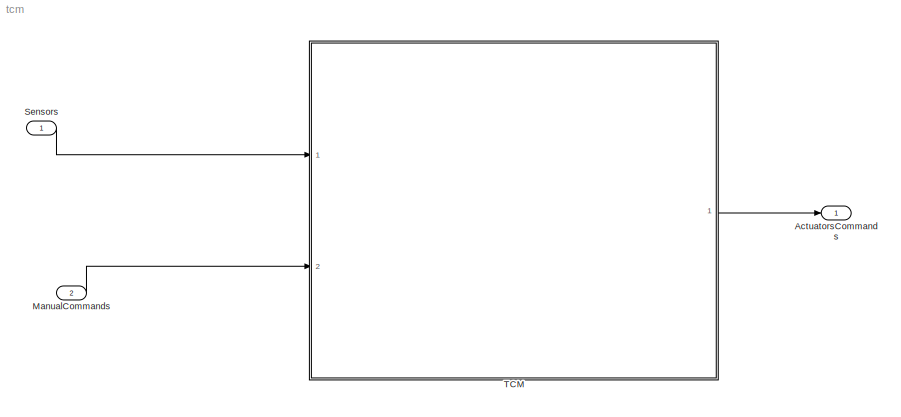
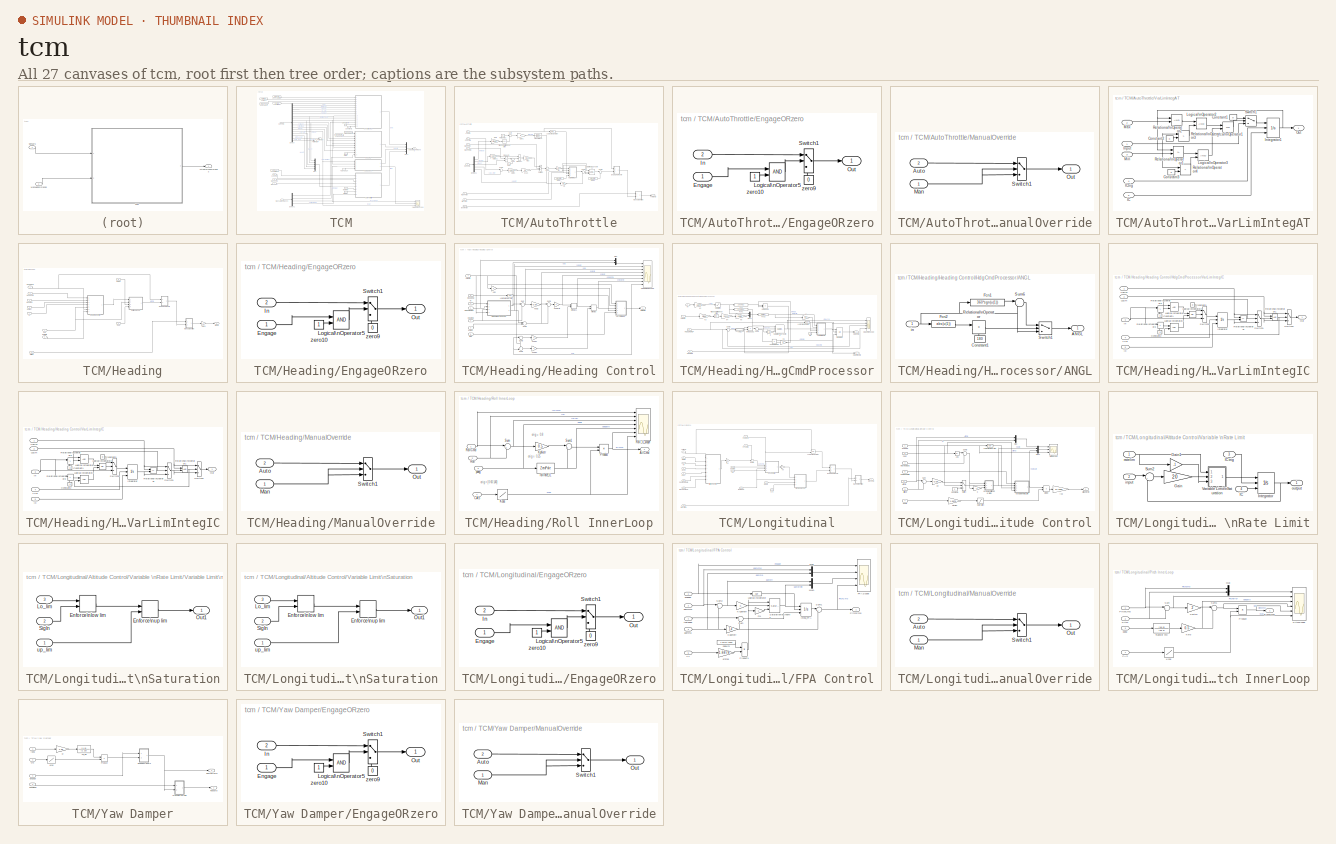
[diagram: thumbnail index - all 27 canvases of the model, root first then tree order]
MODEL tcm
KIND model
BLOCK [Outport] ActuatorsCommands
  IconDisplay = Port number
  SID = 384
BLOCK [Inport] ManualCommands 
  IconDisplay = Port number
  Port = 2
  PortDimensions = 9
  SID = 2
BLOCK [Inport] Sensors
  IconDisplay = Port number
  PortDimensions = 17
  SID = 1
BLOCK [SubSystem] TCM
  Ports = [2, 1]
  RequestExecContextInheritance = off
  SID = 385
  Variant = off
BLOCK [Constant] TCM/APAltCmd
  SID = 3
  Value = ap.altcmd
BLOCK [Constant] TCM/APAltEng
  OutDataTypeStr = boolean
  SID = 4
  Value = ap.alteng
BLOCK [Constant] TCM/APFPACmd\n
  SID = 5
  Value = ap.fpacmd
BLOCK [Constant] TCM/APFPAEng
  OutDataTypeStr = boolean
  SID = 6
  Value = ap.FPAeng
BLOCK [Constant] TCM/APHdgCmd
  SID = 7
  Value = ap.headcmd
BLOCK [Constant] TCM/APHeadEng
  OutDataTypeStr = boolean
  SID = 8
  Value = ap.headeng
BLOCK [Constant] TCM/APThrotEng
  OutDataTypeStr = boolean
  SID = 9
  Value = ap.throteng
BLOCK [Outport] TCM/ActuatorsCommands
  IconDisplay = Port number
  SID = 388
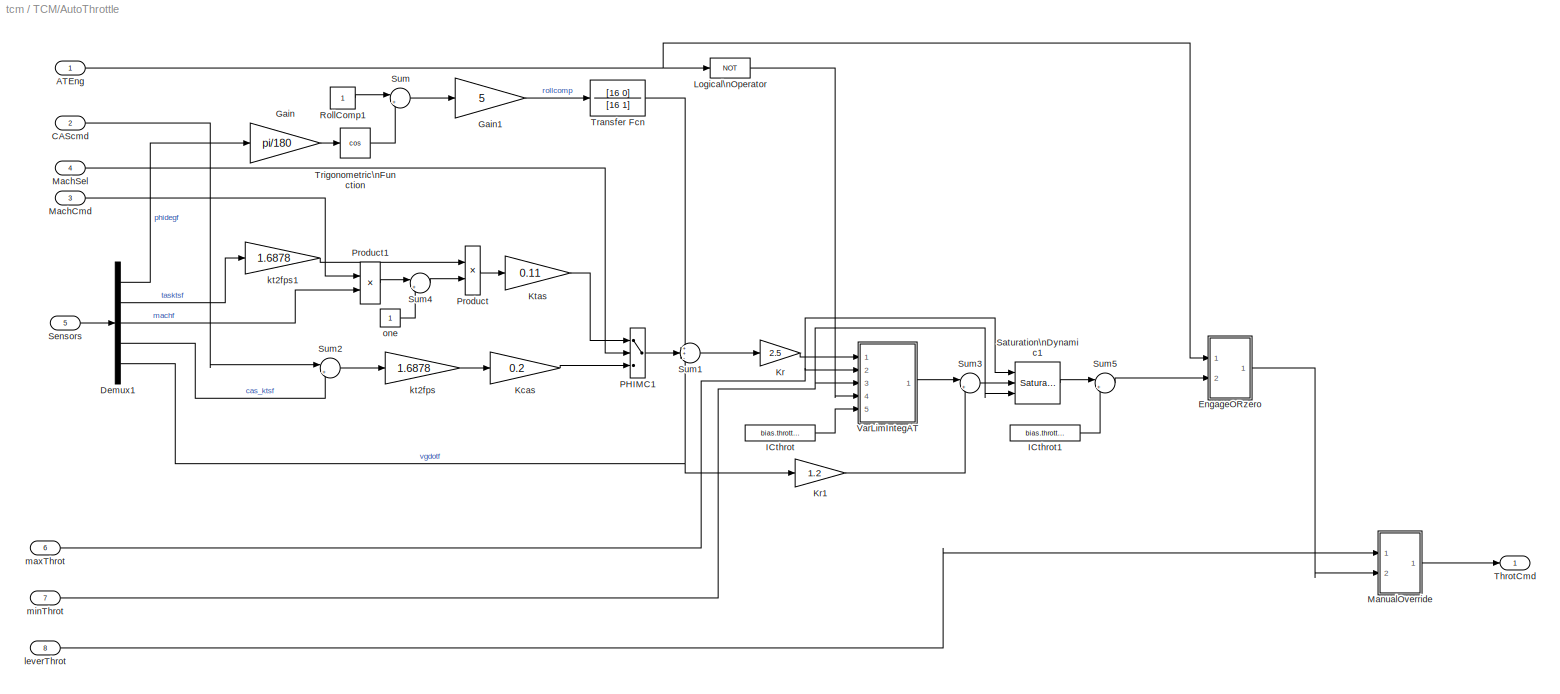
BLOCK [SubSystem] TCM/AutoThrottle
  Ports = [8, 1]
  RequestExecContextInheritance = off
  SID = 10
  Variant = off
BLOCK [Inport] TCM/AutoThrottle/ATEng
  IconDisplay = Port number
  SID = 11
BLOCK [Inport] TCM/AutoThrottle/CAScmd
  IconDisplay = Port number
  Port = 2
  SID = 12
BLOCK [Demux] TCM/AutoThrottle/Demux1
  DisplayOption = bar
  Outputs = 5
  Ports = [1, 5]
  SID = 19
BLOCK [SubSystem] TCM/AutoThrottle/EngageORzero
  Ports = [2, 1]
  RequestExecContextInheritance = off
  SID = 20
  Variant = off
BLOCK [Inport] TCM/AutoThrottle/EngageORzero/Engage
  IconDisplay = Port number
  SID = 21
BLOCK [Inport] TCM/AutoThrottle/EngageORzero/In
  IconDisplay = Port number
  Port = 2
  SID = 22
BLOCK [Logic] TCM/AutoThrottle/EngageORzero/Logical\nOperator5
  AllPortsSameDT = off
  OutDataTypeStr = boolean
  Ports = [2, 1]
  SID = 23
BLOCK [Outport] TCM/AutoThrottle/EngageORzero/Out
  IconDisplay = Port number
  SID = 27
BLOCK [Switch] TCM/AutoThrottle/EngageORzero/Switch1
  InputSameDT = off
  SID = 24
  SaturateOnIntegerOverflow = off
  Threshold = 0.5
BLOCK [Constant] TCM/AutoThrottle/EngageORzero/zero10
  SID = 25
BLOCK [Constant] TCM/AutoThrottle/EngageORzero/zero9
  SID = 26
  Value = 0
BLOCK [Gain] TCM/AutoThrottle/Gain
  Gain = pi/180
  OutDataTypeStr = Inherit: Inherit via internal rule
  ParamDataTypeStr = Inherit: Inherit via internal rule
  SID = 28
  SaturateOnIntegerOverflow = off
BLOCK [Gain] TCM/AutoThrottle/Gain1
  Gain = 5
  OutDataTypeStr = Inherit: Inherit via internal rule
  ParamDataTypeStr = Inherit: Inherit via internal rule
  SID = 29
  SaturateOnIntegerOverflow = off
BLOCK [Constant] TCM/AutoThrottle/ICthrot
  SID = 30
  SampleTime = -1
  Value = bias.throttle
BLOCK [Constant] TCM/AutoThrottle/ICthrot1
  SID = 31
  SampleTime = -1
  Value = bias.throttle
BLOCK [Gain] TCM/AutoThrottle/Kcas
  Gain = 0.2
  OutDataTypeStr = Inherit: Inherit via internal rule
  ParamDataTypeStr = Inherit: Inherit via internal rule
  SID = 32
  SaturateOnIntegerOverflow = off
BLOCK [Gain] TCM/AutoThrottle/Kr
  Gain = 2.5
  OutDataTypeStr = Inherit: Inherit via internal rule
  ParamDataTypeStr = Inherit: Inherit via internal rule
  SID = 33
  SaturateOnIntegerOverflow = off
BLOCK [Gain] TCM/AutoThrottle/Kr1
  Gain = 1.2
  OutDataTypeStr = Inherit: Inherit via internal rule
  ParamDataTypeStr = Inherit: Inherit via internal rule
  SID = 34
  SaturateOnIntegerOverflow = off
BLOCK [Gain] TCM/AutoThrottle/Ktas
  Gain = 0.11
  OutDataTypeStr = Inherit: Inherit via internal rule
  ParamDataTypeStr = Inherit: Inherit via internal rule
  SID = 35
  SaturateOnIntegerOverflow = off
BLOCK [Logic] TCM/AutoThrottle/Logical\nOperator
  AllPortsSameDT = off
  Operator = NOT
  OutDataTypeStr = boolean
  Ports = [1, 1]
  SID = 36
BLOCK [Inport] TCM/AutoThrottle/MachCmd
  IconDisplay = Port number
  Port = 3
  SID = 13
BLOCK [Inport] TCM/AutoThrottle/MachSel
  IconDisplay = Port number
  Port = 4
  SID = 14
BLOCK [SubSystem] TCM/AutoThrottle/ManualOverride
  Ports = [2, 1]
  RequestExecContextInheritance = off
  SID = 37
  Variant = off
BLOCK [Inport] TCM/AutoThrottle/ManualOverride/Auto
  IconDisplay = Port number
  Port = 2
  SID = 39
BLOCK [Inport] TCM/AutoThrottle/ManualOverride/Man
  IconDisplay = Port number
  SID = 38
BLOCK [Outport] TCM/AutoThrottle/ManualOverride/Out
  IconDisplay = Port number
  SID = 41
BLOCK [Switch] TCM/AutoThrottle/ManualOverride/Switch1
  Criteria = u2 ~= 0
  InputSameDT = off
  SID = 40
  SaturateOnIntegerOverflow = off
  Threshold = 0.5
BLOCK [Switch] TCM/AutoThrottle/PHIMC1
  InputSameDT = off
  SID = 42
  SampleTime = 0.02
  Threshold = 0.5
BLOCK [Product] TCM/AutoThrottle/Product
  InputSameDT = off
  OutDataTypeStr = Inherit: Inherit via internal rule
  Ports = [2, 1]
  SID = 43
  SaturateOnIntegerOverflow = off
BLOCK [Product] TCM/AutoThrottle/Product1
  InputSameDT = off
  Inputs = */
  OutDataTypeStr = Inherit: Inherit via internal rule
  Ports = [2, 1]
  SID = 44
  SaturateOnIntegerOverflow = off
BLOCK [Constant] TCM/AutoThrottle/RollComp1
  SID = 45
  SampleTime = -1
BLOCK [Reference] TCM/AutoThrottle/Saturation\nDynamic1  REF=simulink/Discontinuities/Saturation\nDynamic
  DoSatur = off
  LockScale = off
  OutDataType = sfix(16)
  OutDataTypeStr = Inherit: Same as second input
  OutMax = []
  OutMin = []
  OutScaling = 2^-10
  OutputDataTypeScalingMode = Same as second input
  Ports = [3, 1]
  RndMeth = Floor
  SID = 46
  SourceBlock = simulink/Discontinuities/Saturation\nDynamic
  SourceType = Saturation Dynamic
BLOCK [Inport] TCM/AutoThrottle/Sensors
  IconDisplay = Port number
  Port = 5
  SID = 15
BLOCK [Sum] TCM/AutoThrottle/Sum
  IconShape = round
  InputSameDT = off
  Inputs = |+-
  OutDataTypeStr = Inherit: Inherit via internal rule
  Ports = [2, 1]
  SID = 47
  SaturateOnIntegerOverflow = off
BLOCK [Sum] TCM/AutoThrottle/Sum1
  IconShape = round
  InputSameDT = off
  Inputs = ++-
  OutDataTypeStr = Inherit: Inherit via internal rule
  Ports = [3, 1]
  SID = 48
  SaturateOnIntegerOverflow = off
BLOCK [Sum] TCM/AutoThrottle/Sum2
  IconShape = round
  InputSameDT = off
  Inputs = |+-
  OutDataTypeStr = Inherit: Inherit via internal rule
  Ports = [2, 1]
  SID = 49
  SaturateOnIntegerOverflow = off
BLOCK [Sum] TCM/AutoThrottle/Sum3
  IconShape = round
  InputSameDT = off
  Inputs = |+-
  OutDataTypeStr = Inherit: Inherit via internal rule
  Ports = [2, 1]
  SID = 50
  SaturateOnIntegerOverflow = off
BLOCK [Sum] TCM/AutoThrottle/Sum4
  IconShape = round
  InputSameDT = off
  Inputs = |+-
  OutDataTypeStr = Inherit: Inherit via internal rule
  Ports = [2, 1]
  SID = 51
  SaturateOnIntegerOverflow = off
BLOCK [Sum] TCM/AutoThrottle/Sum5
  IconShape = round
  InputSameDT = off
  Inputs = |+-
  OutDataTypeStr = Inherit: Inherit via internal rule
  Ports = [2, 1]
  SID = 52
  SaturateOnIntegerOverflow = off
BLOCK [Outport] TCM/AutoThrottle/ThrotCmd
  IconDisplay = Port number
  SID = 77
BLOCK [TransferFcn] TCM/AutoThrottle/Transfer Fcn
  Denominator = [16 1]
  Numerator = [16 0]
  SID = 53
BLOCK [Trigonometry] TCM/AutoThrottle/Trigonometric\nFunction
  Operator = cos
  Ports = [1, 1]
  SID = 54
BLOCK [SubSystem] TCM/AutoThrottle/VarLimIntegAT
  Ports = [5, 1]
  RequestExecContextInheritance = off
  SID = 55
  Variant = off
BLOCK [Constant] TCM/AutoThrottle/VarLimIntegAT/Constant1
  SID = 61
  SampleTime = -1
  Value = 0
BLOCK [Constant] TCM/AutoThrottle/VarLimIntegAT/Constant2
  SID = 62
  SampleTime = -1
  Value = 0
BLOCK [Constant] TCM/AutoThrottle/VarLimIntegAT/Constant3
  SID = 63
  SampleTime = -1
  Value = 0
BLOCK [Inport] TCM/AutoThrottle/VarLimIntegAT/IC
  IconDisplay = Port number
  Port = 5
  SID = 60
BLOCK [Inport] TCM/AutoThrottle/VarLimIntegAT/ICtrig
  IconDisplay = Port number
  Port = 4
  SID = 59
BLOCK [Inport] TCM/AutoThrottle/VarLimIntegAT/Input
  IconDisplay = Port number
  SID = 56
BLOCK [Integrator] TCM/AutoThrottle/VarLimIntegAT/Integrator1
  ExternalReset = level
  InitialConditionSource = external
  Ports = [3, 1]
  SID = 64
BLOCK [Logic] TCM/AutoThrottle/VarLimIntegAT/Logical\nOperator1
  Operator = OR
  Ports = [2, 1]
  SID = 65
BLOCK [Logic] TCM/AutoThrottle/VarLimIntegAT/Logical\nOperator2
  Ports = [2, 1]
  SID = 66
BLOCK [Logic] TCM/AutoThrottle/VarLimIntegAT/Logical\nOperator3
  Ports = [2, 1]
  SID = 67
BLOCK [Inport] TCM/AutoThrottle/VarLimIntegAT/Max
  IconDisplay = Port number
  Port = 2
  SID = 57
BLOCK [Inport] TCM/AutoThrottle/VarLimIntegAT/Min
  IconDisplay = Port number
  Port = 3
  SID = 58
BLOCK [Outport] TCM/AutoThrottle/VarLimIntegAT/Out
  IconDisplay = Port number
  SID = 73
BLOCK [RelationalOperator] TCM/AutoThrottle/VarLimIntegAT/Relational\nOperator1
  Operator = <=
  Ports = [2, 1]
  SID = 68
BLOCK [RelationalOperator] TCM/AutoThrottle/VarLimIntegAT/Relational\nOperator2
  Ports = [2, 1]
  SID = 69
BLOCK [RelationalOperator] TCM/AutoThrottle/VarLimIntegAT/Relational\nOperator3
  Operator = >
  Ports = [2, 1]
  SID = 70
BLOCK [RelationalOperator] TCM/AutoThrottle/VarLimIntegAT/Relational\nOperator4
  Operator = <
  Ports = [2, 1]
  SID = 71
BLOCK [Switch] TCM/AutoThrottle/VarLimIntegAT/Switch1
  SID = 72
  Threshold = 0.1
BLOCK [Gain] TCM/AutoThrottle/kt2fps
  Gain = 1.6878
  OutDataTypeStr = Inherit: Inherit via internal rule
  ParamDataTypeStr = Inherit: Inherit via internal rule
  SID = 74
  SaturateOnIntegerOverflow = off
BLOCK [Gain] TCM/AutoThrottle/kt2fps1
  Gain = 1.6878
  OutDataTypeStr = Inherit: Inherit via internal rule
  ParamDataTypeStr = Inherit: Inherit via internal rule
  SID = 75
  SaturateOnIntegerOverflow = off
BLOCK [Inport] TCM/AutoThrottle/leverThrot
  IconDisplay = Port number
  Port = 8
  SID = 18
BLOCK [Inport] TCM/AutoThrottle/maxThrot
  IconDisplay = Port number
  Port = 6
  SID = 16
BLOCK [Inport] TCM/AutoThrottle/minThrot
  IconDisplay = Port number
  Port = 7
  SID = 17
BLOCK [Constant] TCM/AutoThrottle/one
  SID = 76
  SampleTime = -1
BLOCK [Constant] TCM/CAScmd
  SID = 78
  Value = 250
BLOCK [Constant] TCM/Constant3
  SID = 79
  Value = 10
BLOCK [Constant] TCM/Constant4
  SID = 80
  Value = 3.2
BLOCK [Demux] TCM/Demux
  DisplayOption = bar
  Outputs = 17
  Ports = [1, 17]
  SID = 81
BLOCK [Demux] TCM/Demux1
  DisplayOption = bar
  Ports = [1, 4]
  SID = 82
BLOCK [SubSystem] TCM/Heading
  Ports = [10, 1]
  RequestExecContextInheritance = off
  SID = 83
  Variant = off
BLOCK [Outport] TCM/Heading/AilCmd
  IconDisplay = Port number
  SID = 229
BLOCK [Inport] TCM/Heading/AilStick
  IconDisplay = Port number
  Port = 10
  SID = 93
BLOCK [Inport] TCM/Heading/CAS
  IconDisplay = Port number
  Port = 5
  SID = 88
BLOCK [SubSystem] TCM/Heading/EngageORzero
  Ports = [2, 1]
  RequestExecContextInheritance = off
  SID = 94
  Variant = off
BLOCK [Inport] TCM/Heading/EngageORzero/Engage
  IconDisplay = Port number
  SID = 95
BLOCK [Inport] TCM/Heading/EngageORzero/In
  IconDisplay = Port number
  Port = 2
  SID = 96
BLOCK [Logic] TCM/Heading/EngageORzero/Logical\nOperator5
  AllPortsSameDT = off
  OutDataTypeStr = boolean
  Ports = [2, 1]
  SID = 97
BLOCK [Outport] TCM/Heading/EngageORzero/Out
  IconDisplay = Port number
  SID = 101
BLOCK [Switch] TCM/Heading/EngageORzero/Switch1
  InputSameDT = off
  SID = 98
  SaturateOnIntegerOverflow = off
  Threshold = 0.5
BLOCK [Constant] TCM/Heading/EngageORzero/zero10
  SID = 99
BLOCK [Constant] TCM/Heading/EngageORzero/zero9
  SID = 100
  Value = 0
BLOCK [Gain] TCM/Heading/Gain1
  Gain = -1
  SID = 102
BLOCK [Inport] TCM/Heading/HeadCmd
  IconDisplay = Port number
  Port = 2
  SID = 85
BLOCK [Inport] TCM/Heading/HeadEng
  IconDisplay = Port number
  SID = 84
BLOCK [Inport] TCM/Heading/Heading
  IconDisplay = Port number
  Port = 4
  SID = 87
BLOCK [SubSystem] TCM/Heading/Heading Control
  Ports = [7, 1]
  RequestExecContextInheritance = off
  SID = 103
  Variant = off
BLOCK [Inport] TCM/Heading/Heading Control/HdgCmdMCP
  IconDisplay = Port number
  SID = 104
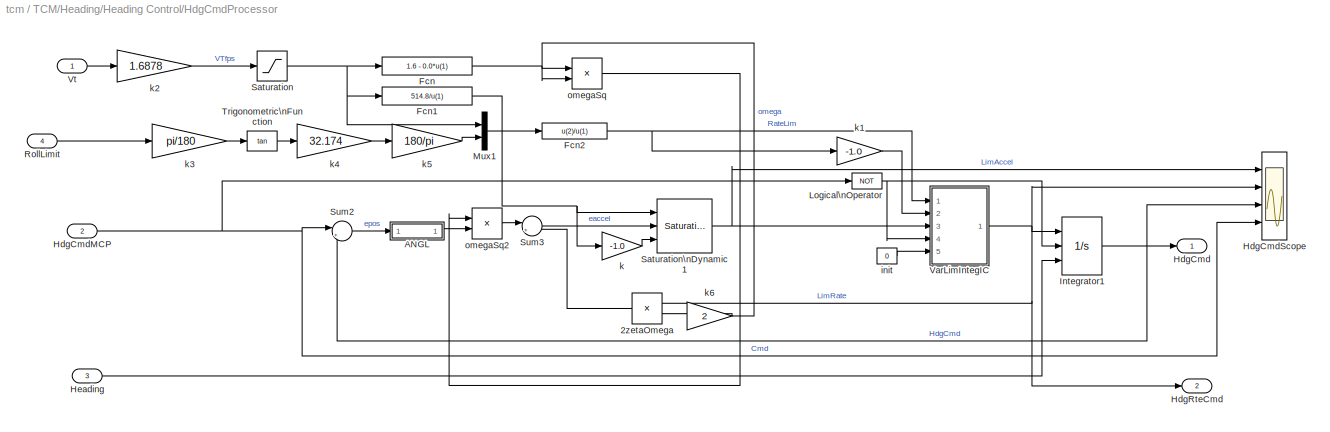
BLOCK [SubSystem] TCM/Heading/Heading Control/HdgCmdProcessor
  Ports = [4, 2]
  RequestExecContextInheritance = off
  SID = 111
  Variant = off
BLOCK [Product] TCM/Heading/Heading Control/HdgCmdProcessor/2zetaOmega
  InputSameDT = off
  OutDataTypeStr = Inherit: Inherit via internal rule
  Ports = [2, 1]
  SID = 116
  SaturateOnIntegerOverflow = off
BLOCK [SubSystem] TCM/Heading/Heading Control/HdgCmdProcessor/ANGL
  Ports = [1, 1]
  RequestExecContextInheritance = off
  SID = 117
  Variant = off
BLOCK [Outport] TCM/Heading/Heading Control/HdgCmdProcessor/ANGL/ANGL
  IconDisplay = Port number
  SID = 125
BLOCK [Constant] TCM/Heading/Heading Control/HdgCmdProcessor/ANGL/Constant1
  SID = 119
  Value = 180
BLOCK [Fcn] TCM/Heading/Heading Control/HdgCmdProcessor/ANGL/Fcn1
  Expr = 360*sgn(u(1))
  SID = 120
BLOCK [Fcn] TCM/Heading/Heading Control/HdgCmdProcessor/ANGL/Fcn2
  Expr = abs(u(1))
  SID = 121
BLOCK [RelationalOperator] TCM/Heading/Heading Control/HdgCmdProcessor/ANGL/Relational\nOperator
  InputSameDT = off
  Operator = >
  Ports = [2, 1]
  SID = 122
BLOCK [Sum] TCM/Heading/Heading Control/HdgCmdProcessor/ANGL/Sum6
  IconShape = round
  InputSameDT = off
  Inputs = |-+
  OutDataTypeStr = Inherit: Inherit via internal rule
  Ports = [2, 1]
  SID = 123
BLOCK [Switch] TCM/Heading/Heading Control/HdgCmdProcessor/ANGL/Switch1
  InputSameDT = off
  SID = 124
  Threshold = 0.1
BLOCK [Inport] TCM/Heading/Heading Control/HdgCmdProcessor/ANGL/in
  IconDisplay = Port number
  SID = 118
BLOCK [Fcn] TCM/Heading/Heading Control/HdgCmdProcessor/Fcn
  Expr = 1.6 - 0.0*u(1)
  SID = 126
BLOCK [Fcn] TCM/Heading/Heading Control/HdgCmdProcessor/Fcn1
  Expr = 514.8/u(1)
  SID = 127
BLOCK [Fcn] TCM/Heading/Heading Control/HdgCmdProcessor/Fcn2
  Expr = u(2)/u(1)
  SID = 128
BLOCK [Outport] TCM/Heading/Heading Control/HdgCmdProcessor/HdgCmd
  IconDisplay = Port number
  SID = 169
BLOCK [Inport] TCM/Heading/Heading Control/HdgCmdProcessor/HdgCmdMCP
  IconDisplay = Port number
  Port = 2
  SID = 113
BLOCK [Scope] TCM/Heading/Heading Control/HdgCmdProcessor/HdgCmdScope
  NumInputPorts = 4
  Ports = [4]
  SID = 129
  ScopeSpecificationString = C++SS(StrPVP('Location','[661, 662, 1361, 1168]'),StrPVP('Open','off'),MxPVP('AxesTitles',24,'struct(''axes1'',''%<SignalLabel>'',''axes2'',''%<SignalLabel>'',''axes3'',''%<SignalLabel>'',''axes4'',''%<SignalLabel>'')'),StrPVP('YMin','-2~-4~-40~-40'),StrPVP('YMax','2~4~40~40'),StrPVP('SaveName','ScopeData6'),StrPVP('DataFormat','StructureWithTime'),StrPVP('LimitDataPoints','off'),StrPVP('BlockPara...<+81ch>
BLOCK [Outport] TCM/Heading/Heading Control/HdgCmdProcessor/HdgRteCmd
  IconDisplay = Port number
  Port = 2
  SID = 170
BLOCK [Inport] TCM/Heading/Heading Control/HdgCmdProcessor/Heading
  IconDisplay = Port number
  Port = 3
  SID = 114
BLOCK [Integrator] TCM/Heading/Heading Control/HdgCmdProcessor/Integrator1
  ExternalReset = level
  InitialConditionSource = external
  Ports = [3, 1]
  SID = 130
BLOCK [Logic] TCM/Heading/Heading Control/HdgCmdProcessor/Logical\nOperator
  AllPortsSameDT = off
  Operator = NOT
  OutDataTypeStr = boolean
  Ports = [1, 1]
  SID = 131
BLOCK [Mux] TCM/Heading/Heading Control/HdgCmdProcessor/Mux1
  DisplayOption = bar
  Inputs = 2
  Ports = [2, 1]
  SID = 132
BLOCK [Inport] TCM/Heading/Heading Control/HdgCmdProcessor/RollLimit
  IconDisplay = Port number
  Port = 4
  SID = 115
BLOCK [Saturate] TCM/Heading/Heading Control/HdgCmdProcessor/Saturation
  InputPortMap = u0
  LowerLimit = 0.0001
  Ports = [1, 1]
  SID = 133
  UpperLimit = 1000
BLOCK [Reference] TCM/Heading/Heading Control/HdgCmdProcessor/Saturation\nDynamic1  REF=simulink/Discontinuities/Saturation\nDynamic
  DoSatur = off
  LockScale = off
  OutDataType = fixdt(1, 16)
  OutDataTypeStr = Inherit: Same as second input
  OutMax = []
  OutMin = []
  OutScaling = 2^-10
  OutputDataTypeScalingMode = Same as second input
  Ports = [3, 1]
  RndMeth = Floor
  SID = 134
  SourceBlock = simulink/Discontinuities/Saturation\nDynamic
  SourceType = Saturation Dynamic
BLOCK [Sum] TCM/Heading/Heading Control/HdgCmdProcessor/Sum2
  IconShape = round
  InputSameDT = off
  Inputs = |+-
  OutDataTypeStr = Inherit: Inherit via internal rule
  Ports = [2, 1]
  SID = 135
  SaturateOnIntegerOverflow = off
BLOCK [Sum] TCM/Heading/Heading Control/HdgCmdProcessor/Sum3
  IconShape = round
  InputSameDT = off
  Inputs = |+-
  OutDataTypeStr = Inherit: Inherit via internal rule
  Ports = [2, 1]
  SID = 136
  SaturateOnIntegerOverflow = off
BLOCK [Trigonometry] TCM/Heading/Heading Control/HdgCmdProcessor/Trigonometric\nFunction
  Operator = tan
  Ports = [1, 1]
  SID = 137
BLOCK [SubSystem] TCM/Heading/Heading Control/HdgCmdProcessor/VarLimIntegIC
  Ports = [5, 1]
  RequestExecContextInheritance = off
  SID = 138
  Variant = off
BLOCK [Constant] TCM/Heading/Heading Control/HdgCmdProcessor/VarLimIntegIC/Constant1
  SID = 144
  Value = 0
BLOCK [Constant] TCM/Heading/Heading Control/HdgCmdProcessor/VarLimIntegIC/Constant2
  SID = 145
  Value = 0
BLOCK [Constant] TCM/Heading/Heading Control/HdgCmdProcessor/VarLimIntegIC/Constant3
  SID = 146
  Value = 0
BLOCK [Inport] TCM/Heading/Heading Control/HdgCmdProcessor/VarLimIntegIC/IC
  IconDisplay = Port number
  Port = 5
  SID = 143
BLOCK [Inport] TCM/Heading/Heading Control/HdgCmdProcessor/VarLimIntegIC/In
  IconDisplay = Port number
  Port = 3
  SID = 141
BLOCK [Integrator] TCM/Heading/Heading Control/HdgCmdProcessor/VarLimIntegIC/Integrator
  ExternalReset = level
  InitialConditionSource = external
  Ports = [3, 1]
  SID = 147
BLOCK [Inport] TCM/Heading/Heading Control/HdgCmdProcessor/VarLimIntegIC/LoLim
  IconDisplay = Port number
  Port = 2
  SID = 140
BLOCK [Logic] TCM/Heading/Heading Control/HdgCmdProcessor/VarLimIntegIC/Logical\nOperator
  AllPortsSameDT = off
  Ports = [2, 1]
  SID = 148
BLOCK [Logic] TCM/Heading/Heading Control/HdgCmdProcessor/VarLimIntegIC/Logical\nOperator1
  AllPortsSameDT = off
  Ports = [2, 1]
  SID = 149
BLOCK [Logic] TCM/Heading/Heading Control/HdgCmdProcessor/VarLimIntegIC/Logical\nOperator2
  AllPortsSameDT = off
  Operator = OR
  Ports = [2, 1]
  SID = 150
BLOCK [Outport] TCM/Heading/Heading Control/HdgCmdProcessor/VarLimIntegIC/Out
  IconDisplay = Port number
  SID = 158
BLOCK [RelationalOperator] TCM/Heading/Heading Control/HdgCmdProcessor/VarLimIntegIC/Relational\nOperator
  InputSameDT = off
  Operator = <=
  Ports = [2, 1]
  SID = 151
BLOCK [RelationalOperator] TCM/Heading/Heading Control/HdgCmdProcessor/VarLimIntegIC/Relational\nOperator1
  InputSameDT = off
  Ports = [2, 1]
  SID = 152
BLOCK [RelationalOperator] TCM/Heading/Heading Control/HdgCmdProcessor/VarLimIntegIC/Relational\nOperator2
  InputSameDT = off
  Operator = >
  Ports = [2, 1]
  SID = 153
BLOCK [RelationalOperator] TCM/Heading/Heading Control/HdgCmdProcessor/VarLimIntegIC/Relational\nOperator3
  InputSameDT = off
  Operator = <
  Ports = [2, 1]
  SID = 154
BLOCK [Switch] TCM/Heading/Heading Control/HdgCmdProcessor/VarLimIntegIC/Switch1
  SID = 155
  Threshold = 0.5
BLOCK [Switch] TCM/Heading/Heading Control/HdgCmdProcessor/VarLimIntegIC/Switch2
  SID = 156
  Threshold = 0.5
BLOCK [Switch] TCM/Heading/Heading Control/HdgCmdProcessor/VarLimIntegIC/Switch3
  SID = 157
  Threshold = 0.5
BLOCK [Inport] TCM/Heading/Heading Control/HdgCmdProcessor/VarLimIntegIC/Trig
  IconDisplay = Port number
  Port = 4
  SID = 142
BLOCK [Inport] TCM/Heading/Heading Control/HdgCmdProcessor/VarLimIntegIC/UpLim
  IconDisplay = Port number
  SID = 139
BLOCK [Inport] TCM/Heading/Heading Control/HdgCmdProcessor/Vt
  IconDisplay = Port number
  SID = 112
BLOCK [Constant] TCM/Heading/Heading Control/HdgCmdProcessor/init
  SID = 159
  Value = 0
BLOCK [Gain] TCM/Heading/Heading Control/HdgCmdProcessor/k
  Gain = -1.0
  OutDataTypeStr = Inherit: Inherit via internal rule
  ParamDataTypeStr = Inherit: Inherit via internal rule
  SID = 160
  SaturateOnIntegerOverflow = off
BLOCK [Gain] TCM/Heading/Heading Control/HdgCmdProcessor/k1
  Gain = -1.0
  OutDataTypeStr = Inherit: Inherit via internal rule
  ParamDataTypeStr = Inherit: Inherit via internal rule
  SID = 161
  SaturateOnIntegerOverflow = off
BLOCK [Gain] TCM/Heading/Heading Control/HdgCmdProcessor/k2
  Gain = 1.6878
  OutDataTypeStr = Inherit: Inherit via internal rule
  ParamDataTypeStr = Inherit: Inherit via internal rule
  SID = 162
  SaturateOnIntegerOverflow = off
BLOCK [Gain] TCM/Heading/Heading Control/HdgCmdProcessor/k3
  Gain = pi/180
  OutDataTypeStr = Inherit: Inherit via internal rule
  ParamDataTypeStr = Inherit: Inherit via internal rule
  SID = 163
  SaturateOnIntegerOverflow = off
BLOCK [Gain] TCM/Heading/Heading Control/HdgCmdProcessor/k4
  Gain = 32.174
  OutDataTypeStr = Inherit: Inherit via internal rule
  ParamDataTypeStr = Inherit: Inherit via internal rule
  SID = 164
  SaturateOnIntegerOverflow = off
BLOCK [Gain] TCM/Heading/Heading Control/HdgCmdProcessor/k5
  Gain = 180/pi
  OutDataTypeStr = Inherit: Inherit via internal rule
  ParamDataTypeStr = Inherit: Inherit via internal rule
  SID = 165
  SaturateOnIntegerOverflow = off
BLOCK [Gain] TCM/Heading/Heading Control/HdgCmdProcessor/k6
  Gain = 2
  OutDataTypeStr = Inherit: Inherit via internal rule
  ParamDataTypeStr = Inherit: Inherit via internal rule
  SID = 166
  SaturateOnIntegerOverflow = off
BLOCK [Product] TCM/Heading/Heading Control/HdgCmdProcessor/omegaSq
  InputSameDT = off
  OutDataTypeStr = Inherit: Inherit via internal rule
  Ports = [2, 1]
  SID = 167
  SaturateOnIntegerOverflow = off
BLOCK [Product] TCM/Heading/Heading Control/HdgCmdProcessor/omegaSq2
  InputSameDT = off
  OutDataTypeStr = Inherit: Inherit via internal rule
  Ports = [2, 1]
  SID = 168
  SaturateOnIntegerOverflow = off
BLOCK [Scope] TCM/Heading/Heading Control/HdgRollCmdScope
  NumInputPorts = 8
  Ports = [8]
  SID = 171
  ScopeSpecificationString = C++SS(StrPVP('Location','[803, 84, 1609, 1060]'),StrPVP('Open','off'),MxPVP('AxesTitles',24,'struct(''axes1'',''HdgCmdMCP,  psic'',''axes2'',''%<SignalLabel>'',''axes3'',''%<SignalLabel>'',''axes4'',''%<SignalLabel>'',''axes5'',''%<SignalLabel>'',''axes6'',''%<SignalLabel>'',''axes7'',''%<SignalLabel>'',''axes8'',''%<SignalLabel>'')'),StrPVP('YMin','-30~-30~-10~-10~-4~-10~0~-5'),StrPVP('YMax','30~...<+223ch>
BLOCK [Inport] TCM/Heading/Heading Control/HeadEng
  IconDisplay = Port number
  Port = 6
  SID = 109
BLOCK [Inport] TCM/Heading/Heading Control/Heading
  IconDisplay = Port number
  Port = 2
  SID = 105
BLOCK [Gain] TCM/Heading/Heading Control/Khdg
  Gain = 0.05
  OutDataTypeStr = Inherit: Inherit via internal rule
  ParamDataTypeStr = Inherit: Inherit via internal rule
  SID = 172
  SaturateOnIntegerOverflow = off
BLOCK [Gain] TCM/Heading/Heading Control/Khdg1
  OutDataTypeStr = Inherit: Inherit via internal rule
  ParamDataTypeStr = Inherit: Inherit via internal rule
  SID = 173
  SaturateOnIntegerOverflow = off
BLOCK [Gain] TCM/Heading/Heading Control/Khdg2
  OutDataTypeStr = Inherit: Inherit via internal rule
  ParamDataTypeStr = Inherit: Inherit via internal rule
  SID = 174
  SaturateOnIntegerOverflow = off
BLOCK [Gain] TCM/Heading/Heading Control/Khdgrte
  Gain = 3
  OutDataTypeStr = Inherit: Inherit via internal rule
  ParamDataTypeStr = Inherit: Inherit via internal rule
  SID = 175
  SaturateOnIntegerOverflow = off
BLOCK [Logic] TCM/Heading/Heading Control/Logical\nOperator
  AllPortsSameDT = off
  Operator = NOT
  OutDataTypeStr = boolean
  Ports = [1, 1]
  SID = 176
BLOCK [MinMax] TCM/Heading/Heading Control/MinMax
  InputSameDT = off
  Inputs = 2
  Ports = [2, 1]
  SID = 177
  SaturateOnIntegerOverflow = off
BLOCK [MinMax] TCM/Heading/Heading Control/MinMax1
  Function = max
  InputSameDT = off
  Inputs = 2
  Ports = [2, 1]
  SID = 178
  SaturateOnIntegerOverflow = off
BLOCK [Mux] TCM/Heading/Heading Control/Mux
  DisplayOption = bar
  Inputs = 2
  Ports = [2, 1]
  SID = 179
BLOCK [Inport] TCM/Heading/Heading Control/Roll
  IconDisplay = Port number
  Port = 5
  SID = 108
BLOCK [Outport] TCM/Heading/Heading Control/RollCmd
  IconDisplay = Port number
  SID = 207
BLOCK [Inport] TCM/Heading/Heading Control/RollLimit
  IconDisplay = Port number
  Port = 7
  SID = 110
BLOCK [Sum] TCM/Heading/Heading Control/Sum
  IconShape = round
  InputSameDT = off
  Inputs = |+-
  OutDataTypeStr = Inherit: Inherit via internal rule
  Ports = [2, 1]
  SID = 180
  SaturateOnIntegerOverflow = off
BLOCK [Sum] TCM/Heading/Heading Control/Sum1
  IconShape = round
  InputSameDT = off
  Inputs = |++
  OutDataTypeStr = Inherit: Inherit via internal rule
  Ports = [2, 1]
  SID = 181
  SaturateOnIntegerOverflow = off
BLOCK [Sum] TCM/Heading/Heading Control/Sum2
  IconShape = round
  InputSameDT = off
  Inputs = |+-
  OutDataTypeStr = Inherit: Inherit via internal rule
  Ports = [2, 1]
  SID = 182
  SaturateOnIntegerOverflow = off
BLOCK [Sum] TCM/Heading/Heading Control/Sum3
  IconShape = round
  InputSameDT = off
  Inputs = |--
  OutDataTypeStr = Inherit: Inherit via internal rule
  Ports = [2, 1]
  SID = 183
  SaturateOnIntegerOverflow = off
BLOCK [Sum] TCM/Heading/Heading Control/Sum4
  IconShape = round
  InputSameDT = off
  Inputs = +-|
  OutDataTypeStr = Inherit: Inherit via internal rule
  Ports = [2, 1]
  SID = 184
  SaturateOnIntegerOverflow = off
BLOCK [SubSystem] TCM/Heading/Heading Control/VarLimIntegIC
  Ports = [5, 1]
  RequestExecContextInheritance = off
  SID = 185
  Variant = off
BLOCK [Constant] TCM/Heading/Heading Control/VarLimIntegIC/Constant1
  SID = 191
  Value = 0
BLOCK [Constant] TCM/Heading/Heading Control/VarLimIntegIC/Constant2
  SID = 192
  Value = 0
BLOCK [Constant] TCM/Heading/Heading Control/VarLimIntegIC/Constant3
  SID = 193
  Value = 0
BLOCK [Inport] TCM/Heading/Heading Control/VarLimIntegIC/IC
  IconDisplay = Port number
  Port = 5
  SID = 190
BLOCK [Inport] TCM/Heading/Heading Control/VarLimIntegIC/In
  IconDisplay = Port number
  Port = 3
  SID = 188
BLOCK [Integrator] TCM/Heading/Heading Control/VarLimIntegIC/Integrator
  ExternalReset = level
  InitialConditionSource = external
  Ports = [3, 1]
  SID = 194
BLOCK [Inport] TCM/Heading/Heading Control/VarLimIntegIC/LoLim
  IconDisplay = Port number
  Port = 2
  SID = 187
BLOCK [Logic] TCM/Heading/Heading Control/VarLimIntegIC/Logical\nOperator
  AllPortsSameDT = off
  Ports = [2, 1]
  SID = 195
BLOCK [Logic] TCM/Heading/Heading Control/VarLimIntegIC/Logical\nOperator1
  AllPortsSameDT = off
  Ports = [2, 1]
  SID = 196
BLOCK [Logic] TCM/Heading/Heading Control/VarLimIntegIC/Logical\nOperator2
  AllPortsSameDT = off
  Operator = OR
  Ports = [2, 1]
  SID = 197
BLOCK [Outport] TCM/Heading/Heading Control/VarLimIntegIC/Out
  IconDisplay = Port number
  SID = 205
BLOCK [RelationalOperator] TCM/Heading/Heading Control/VarLimIntegIC/Relational\nOperator
  InputSameDT = off
  Operator = <=
  Ports = [2, 1]
  SID = 198
BLOCK [RelationalOperator] TCM/Heading/Heading Control/VarLimIntegIC/Relational\nOperator1
  InputSameDT = off
  Ports = [2, 1]
  SID = 199
BLOCK [RelationalOperator] TCM/Heading/Heading Control/VarLimIntegIC/Relational\nOperator2
  InputSameDT = off
  Operator = >
  Ports = [2, 1]
  SID = 200
BLOCK [RelationalOperator] TCM/Heading/Heading Control/VarLimIntegIC/Relational\nOperator3
  InputSameDT = off
  Operator = <
  Ports = [2, 1]
  SID = 201
BLOCK [Switch] TCM/Heading/Heading Control/VarLimIntegIC/Switch1
  SID = 202
  Threshold = 0.5
BLOCK [Switch] TCM/Heading/Heading Control/VarLimIntegIC/Switch2
  SID = 203
  Threshold = 0.5
BLOCK [Switch] TCM/Heading/Heading Control/VarLimIntegIC/Switch3
  SID = 204
  Threshold = 0.5
BLOCK [Inport] TCM/Heading/Heading Control/VarLimIntegIC/Trig
  IconDisplay = Port number
  Port = 4
  SID = 189
BLOCK [Inport] TCM/Heading/Heading Control/VarLimIntegIC/UpLim
  IconDisplay = Port number
  SID = 186
BLOCK [Inport] TCM/Heading/Heading Control/Vt
  IconDisplay = Port number
  Port = 4
  SID = 107
BLOCK [Inport] TCM/Heading/Heading Control/psidot
  IconDisplay = Port number
  Port = 3
  SID = 106
BLOCK [Gain] TCM/Heading/Heading Control/sgn
  Gain = -1
  OutDataTypeStr = Inherit: Inherit via internal rule
  ParamDataTypeStr = Inherit: Inherit via internal rule
  SID = 206
  SaturateOnIntegerOverflow = off
BLOCK [SubSystem] TCM/Heading/ManualOverride
  Ports = [2, 1]
  RequestExecContextInheritance = off
  SID = 208
  Variant = off
BLOCK [Inport] TCM/Heading/ManualOverride/Auto
  IconDisplay = Port number
  Port = 2
  SID = 210
BLOCK [Inport] TCM/Heading/ManualOverride/Man
  IconDisplay = Port number
  SID = 209
BLOCK [Outport] TCM/Heading/ManualOverride/Out
  IconDisplay = Port number
  SID = 212
BLOCK [Switch] TCM/Heading/ManualOverride/Switch1
  Criteria = u2 ~= 0
  InputSameDT = off
  SID = 211
  SaturateOnIntegerOverflow = off
  Threshold = 0.5
BLOCK [Inport] TCM/Heading/Roll
  IconDisplay = Port number
  Port = 3
  SID = 86
BLOCK [SubSystem] TCM/Heading/Roll InnerLoop
  Ports = [4, 1]
  RequestExecContextInheritance = off
  SID = 213
  Variant = off
BLOCK [Outport] TCM/Heading/Roll InnerLoop/AilCmd
  IconDisplay = Port number
  SID = 225
BLOCK [Inport] TCM/Heading/Roll InnerLoop/CAS
  IconDisplay = Port number
  Port = 4
  SID = 217
BLOCK [Lookup] TCM/Heading/Roll InnerLoop/Kcas
  InputValues = [0 120 350 500]
  SID = 218
  SaturateOnIntegerOverflow = off
  Table = [1.0 1.0 0.3 0.3]
BLOCK [Gain] TCM/Heading/Roll InnerLoop/Kphierr
  Gain = 0.5
  OutDataTypeStr = Inherit: Inherit via internal rule
  ParamDataTypeStr = Inherit: Inherit via internal rule
  SID = 219
  SaturateOnIntegerOverflow = off
BLOCK [Product] TCM/Heading/Roll InnerLoop/Product
  InputSameDT = off
  OutDataTypeStr = Inherit: Inherit via internal rule
  Ports = [2, 1]
  SID = 220
  SaturateOnIntegerOverflow = off
BLOCK [Inport] TCM/Heading/Roll InnerLoop/Roll
  IconDisplay = Port number
  Port = 2
  SID = 215
BLOCK [Inport] TCM/Heading/Roll InnerLoop/RollCmd
  IconDisplay = Port number
  SID = 214
BLOCK [Scope] TCM/Heading/Roll InnerLoop/Roll_IL_scope
  NumInputPorts = 7
  Ports = [7]
  SID = 221
  ScopeSpecificationString = C++SS(StrPVP('Location','[1077, 75, 1857, 890]'),StrPVP('Open','off'),MxPVP('AxesTitles',24,'struct(''axes1'',''%<SignalLabel>'',''axes2'',''%<SignalLabel>'',''axes3'',''%<SignalLabel>'',''axes4'',''%<SignalLabel>'',''axes5'',''%<SignalLabel>'',''axes6'',''%<SignalLabel>'',''axes7'',''%<SignalLabel>'')'),StrPVP('YMin','-30~-30~-10~-10~-4~-10~0'),StrPVP('YMax','30~30~10~10~4~10~1'),StrPVP('SaveName...<+187ch>
BLOCK [Sum] TCM/Heading/Roll InnerLoop/Sum
  IconShape = round
  InputSameDT = off
  Inputs = |+-
  OutDataTypeStr = Inherit: Inherit via internal rule
  Ports = [2, 1]
  SID = 222
  SaturateOnIntegerOverflow = off
BLOCK [Sum] TCM/Heading/Roll InnerLoop/Sum1
  IconShape = round
  InputSameDT = off
  Inputs = |+-
  OutDataTypeStr = Inherit: Inherit via internal rule
  Ports = [2, 1]
  SID = 223
  SaturateOnIntegerOverflow = off
BLOCK [Inport] TCM/Heading/Roll InnerLoop/pdeg
  IconDisplay = Port number
  Port = 3
  SID = 216
BLOCK [ZeroPole] TCM/Heading/Roll InnerLoop/rollrate_IL
  Gain = 0.00645
  Poles = -0.5
  SID = 224
  Zeros = 0
BLOCK [Inport] TCM/Heading/RollLimit
  IconDisplay = Port number
  Port = 9
  SID = 92
BLOCK [Inport] TCM/Heading/Vt
  IconDisplay = Port number
  Port = 7
  SID = 90
BLOCK [Inport] TCM/Heading/pDeg
  IconDisplay = Port number
  Port = 8
  SID = 91
BLOCK [Inport] TCM/Heading/psidot
  IconDisplay = Port number
  Port = 6
  SID = 89
BLOCK [SubSystem] TCM/Longitudinal
  Ports = [15, 1]
  RequestExecContextInheritance = off
  SID = 230
  Variant = off
BLOCK [Inport] TCM/Longitudinal/Alt
  IconDisplay = Port number
  Port = 5
  SID = 235
BLOCK [Inport] TCM/Longitudinal/AltCmd
  IconDisplay = Port number
  Port = 4
  SID = 234
BLOCK [SubSystem] TCM/Longitudinal/Altitude Control
  Ports = [7, 1]
  RequestExecContextInheritance = off
  SID = 246
  Variant = off
BLOCK [Abs] TCM/Longitudinal/Altitude Control/Abs
  SID = 254
BLOCK [Inport] TCM/Longitudinal/Altitude Control/AltCmd
  IconDisplay = Port number
  Port = 2
  SID = 248
BLOCK [Scope] TCM/Longitudinal/Altitude Control/AltCtnlScope
  NumInputPorts = 3
  Ports = [3]
  SID = 255
  ScopeSpecificationString = C++SS(StrPVP('Location','[888, 71, 1614, 502]'),StrPVP('Open','off'),MxPVP('AxesTitles',24,'struct(''axes1'',''AltCmd,  Altitude'',''axes2'',''hdotc,  hdotcLim'',''axes3'',''%<SignalLabel>'')'),StrPVP('TimeRange','30'),StrPVP('YMin','10000~-5~0'),StrPVP('YMax','10200~15~1'),StrPVP('SaveName','ScopeData3'),StrPVP('DataFormat','StructureWithTime'),StrPVP('LimitDataPoints','off'),StrPVP('BlockParamSa...<+78ch>
BLOCK [Inport] TCM/Longitudinal/Altitude Control/Altitude
  IconDisplay = Port number
  Port = 3
  SID = 249
BLOCK [Constant] TCM/Longitudinal/Altitude Control/Constant1
  SID = 256
  Value = 0
BLOCK [Product] TCM/Longitudinal/Altitude Control/Divide
  InputSameDT = off
  Inputs = */
  OutDataTypeStr = Inherit: Inherit via internal rule
  Ports = [2, 1]
  RndMeth = Floor
  SID = 257
  SaturateOnIntegerOverflow = off
BLOCK [Gain] TCM/Longitudinal/Altitude Control/Kh
  Gain = 0.08
  OutDataTypeStr = Inherit: Inherit via internal rule
  ParamDataTypeStr = Inherit: Inherit via internal rule
  SID = 258
  SaturateOnIntegerOverflow = off
BLOCK [Logic] TCM/Longitudinal/Altitude Control/Logical\nOperator
  Operator = NOT
  Ports = [1, 1]
  SID = 259
BLOCK [Mux] TCM/Longitudinal/Altitude Control/Mux
  DisplayOption = bar
  Inputs = 2
  Ports = [2, 1]
  SID = 260
BLOCK [Mux] TCM/Longitudinal/Altitude Control/Mux1
  DisplayOption = bar
  Inputs = 2
  Ports = [2, 1]
  SID = 261
BLOCK [Saturate] TCM/Longitudinal/Altitude Control/Saturation
  InputPortMap = u0
  LowerLimit = 0.0001
  Ports = [1, 1]
  SID = 262
  UpperLimit = 1000
BLOCK [Sum] TCM/Longitudinal/Altitude Control/Sum
  IconShape = round
  InputSameDT = off
  Inputs = |+-
  OutDataTypeStr = Inherit: Inherit via internal rule
  Ports = [2, 1]
  SID = 263
  SaturateOnIntegerOverflow = off
BLOCK [Sum] TCM/Longitudinal/Altitude Control/Sum3
  IconShape = round
  Inputs = |++
  Ports = [2, 1]
  SID = 264
BLOCK [Switch] TCM/Longitudinal/Altitude Control/Switch
  InputSameDT = off
  SID = 265
  SaturateOnIntegerOverflow = off
BLOCK [SubSystem] TCM/Longitudinal/Altitude Control/Variable Limit\nSaturation
  Ports = [3, 1]
  RequestExecContextInheritance = off
  SID = 283
  Variant = off
BLOCK [MinMax] TCM/Longitudinal/Altitude Control/Variable Limit\nSaturation/Enforce\nlow lim
  Function = max
  InputSameDT = off
  Inputs = 2
  Ports = [2, 1]
  SID = 287
  SaturateOnIntegerOverflow = off
BLOCK [MinMax] TCM/Longitudinal/Altitude Control/Variable Limit\nSaturation/Enforce\nup lim
  InputSameDT = off
  Inputs = 2
  Ports = [2, 1]
  SID = 288
  SaturateOnIntegerOverflow = off
BLOCK [Inport] TCM/Longitudinal/Altitude Control/Variable Limit\nSaturation/Lo_lim
  IconDisplay = Port number
  Port = 3
  SID = 286
BLOCK [Outport] TCM/Longitudinal/Altitude Control/Variable Limit\nSaturation/Out1
  IconDisplay = Port number
  SID = 289
BLOCK [Inport] TCM/Longitudinal/Altitude Control/Variable Limit\nSaturation/SigIn
  IconDisplay = Port number
  Port = 2
  SID = 285
BLOCK [Inport] TCM/Longitudinal/Altitude Control/Variable Limit\nSaturation/up_lim
  IconDisplay = Port number
  SID = 284
BLOCK [SubSystem] TCM/Longitudinal/Altitude Control/Variable \nRate Limit
  Ports = [4, 1]
  RequestExecContextInheritance = off
  SID = 266
  Variant = off
BLOCK [Gain] TCM/Longitudinal/Altitude Control/Variable \nRate Limit/Gain
  Gain = 20
  SID = 271
BLOCK [Gain] TCM/Longitudinal/Altitude Control/Variable \nRate Limit/Gain1
  Gain = -1
  SID = 272
BLOCK [Inport] TCM/Longitudinal/Altitude Control/Variable \nRate Limit/IC
  IconDisplay = Port number
  Port = 4
  SID = 270
BLOCK [Inport] TCM/Longitudinal/Altitude Control/Variable \nRate Limit/ICtrig
  IconDisplay = Port number
  Port = 3
  SID = 269
BLOCK [Integrator] TCM/Longitudinal/Altitude Control/Variable \nRate Limit/Integrator
  ExternalReset = level
  IgnoreLimit = on
  InitialConditionSource = external
  Ports = [3, 1]
  SID = 273
BLOCK [Sum] TCM/Longitudinal/Altitude Control/Variable \nRate Limit/Sum2
  IconShape = round
  InputSameDT = off
  Inputs = |+-
  OutDataTypeStr = Inherit: Inherit via internal rule
  Ports = [2, 1]
  SID = 274
BLOCK [SubSystem] TCM/Longitudinal/Altitude Control/Variable \nRate Limit/Variable Limit\nSaturation
  Ports = [3, 1]
  RequestExecContextInheritance = off
  SID = 275
  Variant = off
BLOCK [MinMax] TCM/Longitudinal/Altitude Control/Variable \nRate Limit/Variable Limit\nSaturation/Enforce\nlow lim
  Function = max
  InputSameDT = off
  Inputs = 2
  Ports = [2, 1]
  SID = 279
  SaturateOnIntegerOverflow = off
BLOCK [MinMax] TCM/Longitudinal/Altitude Control/Variable \nRate Limit/Variable Limit\nSaturation/Enforce\nup lim
  InputSameDT = off
  Inputs = 2
  Ports = [2, 1]
  SID = 280
  SaturateOnIntegerOverflow = off
BLOCK [Inport] TCM/Longitudinal/Altitude Control/Variable \nRate Limit/Variable Limit\nSaturation/Lo_lim
  IconDisplay = Port number
  Port = 3
  SID = 278
BLOCK [Outport] TCM/Longitudinal/Altitude Control/Variable \nRate Limit/Variable Limit\nSaturation/Out1
  IconDisplay = Port number
  SID = 281
BLOCK [Inport] TCM/Longitudinal/Altitude Control/Variable \nRate Limit/Variable Limit\nSaturation/SigIn
  IconDisplay = Port number
  Port = 2
  SID = 277
BLOCK [Inport] TCM/Longitudinal/Altitude Control/Variable \nRate Limit/Variable Limit\nSaturation/up_lim
  IconDisplay = Port number
  SID = 276
BLOCK [Inport] TCM/Longitudinal/Altitude Control/Variable \nRate Limit/input
  IconDisplay = Port number
  Port = 2
  SID = 268
BLOCK [Outport] TCM/Longitudinal/Altitude Control/Variable \nRate Limit/output
  IconDisplay = Port number
  SID = 282
BLOCK [Inport] TCM/Longitudinal/Altitude Control/Variable \nRate Limit/ratelim
  IconDisplay = Port number
  SID = 267
BLOCK [Outport] TCM/Longitudinal/Altitude Control/altgamcmd
  IconDisplay = Port number
  SID = 293
BLOCK [Inport] TCM/Longitudinal/Altitude Control/engage
  IconDisplay = Port number
  SID = 247
BLOCK [Inport] TCM/Longitudinal/Altitude Control/gskts
  IconDisplay = Port number
  Port = 4
  SID = 250
BLOCK [Inport] TCM/Longitudinal/Altitude Control/hdot
  IconDisplay = Port number
  Port = 5
  SID = 251
BLOCK [Inport] TCM/Longitudinal/Altitude Control/hdotChgRate
  IconDisplay = Port number
  Port = 6
  SID = 252
BLOCK [Gain] TCM/Longitudinal/Altitude Control/k
  Gain = -1
  OutDataTypeStr = Inherit: Inherit via internal rule
  ParamDataTypeStr = Inherit: Inherit via internal rule
  SID = 290
  SaturateOnIntegerOverflow = off
BLOCK [Gain] TCM/Longitudinal/Altitude Control/kts2fps
  Gain = 1.6878
  OutDataTypeStr = Inherit: Inherit via internal rule
  ParamDataTypeStr = Inherit: Inherit via internal rule
  SID = 291
  SaturateOnIntegerOverflow = off
BLOCK [Inport] TCM/Longitudinal/Altitude Control/maxHdotChg
  IconDisplay = Port number
  Port = 7
  SID = 253
BLOCK [Gain] TCM/Longitudinal/Altitude Control/r2d
  Gain = 57.2958
  OutDataTypeStr = Inherit: Inherit via internal rule
  ParamDataTypeStr = Inherit: Inherit via internal rule
  SID = 292
  SaturateOnIntegerOverflow = off
BLOCK [Inport] TCM/Longitudinal/AntEng
  IconDisplay = Port number
  Port = 2
  SID = 232
BLOCK [Inport] TCM/Longitudinal/CAS
  IconDisplay = Port number
  Port = 12
  SID = 242
BLOCK [Outport] TCM/Longitudinal/ElevCmd
  IconDisplay = Port number
  SID = 348
BLOCK [Inport] TCM/Longitudinal/ElevStick
  IconDisplay = Port number
  Port = 13
  SID = 243
BLOCK [SubSystem] TCM/Longitudinal/EngageORzero
  Ports = [2, 1]
  RequestExecContextInheritance = off
  SID = 294
  Variant = off
BLOCK [Inport] TCM/Longitudinal/EngageORzero/Engage
  IconDisplay = Port number
  SID = 295
BLOCK [Inport] TCM/Longitudinal/EngageORzero/In
  IconDisplay = Port number
  Port = 2
  SID = 296
BLOCK [Logic] TCM/Longitudinal/EngageORzero/Logical\nOperator5
  AllPortsSameDT = off
  OutDataTypeStr = boolean
  Ports = [2, 1]
  SID = 297
BLOCK [Outport] TCM/Longitudinal/EngageORzero/Out
  IconDisplay = Port number
  SID = 301
BLOCK [Switch] TCM/Longitudinal/EngageORzero/Switch1
  InputSameDT = off
  SID = 298
  SaturateOnIntegerOverflow = off
  Threshold = 0.5
BLOCK [Constant] TCM/Longitudinal/EngageORzero/zero10
  SID = 299
BLOCK [Constant] TCM/Longitudinal/EngageORzero/zero9
  SID = 300
  Value = 0
BLOCK [SubSystem] TCM/Longitudinal/FPA Control
  Ports = [5, 1]
  RequestExecContextInheritance = off
  SID = 302
  Variant = off
BLOCK [Scope] TCM/Longitudinal/FPA Control/FPAScope
  NumInputPorts = 4
  Ports = [4]
  SID = 308
  ScopeSpecificationString = C++SS(StrPVP('Location','[747, 82, 1479, 770]'),StrPVP('Open','off'),MxPVP('AxesTitles',24,'struct(''axes1'',''%<SignalLabel>'',''axes2'',''FPAcmd,  FPA'',''axes3'',''%<SignalLabel>'',''axes4'',''%<SignalLabel>'')'),StrPVP('YMin','-1~-5~-2~-5'),StrPVP('YMax','2~5~2~10'),StrPVP('SaveName','ScopeData12'),StrPVP('DataFormat','StructureWithTime'),StrPVP('LimitDataPoints','off'),StrPVP('BlockParamSampl...<+75ch>
BLOCK [Integrator] TCM/Longitudinal/FPA Control/Integ_FPA
  ExternalReset = level
  IgnoreLimit = on
  InitialConditionSource = external
  Ports = [3, 1]
  SID = 309
BLOCK [Gain] TCM/Longitudinal/FPA Control/KIgamerr
  OutDataTypeStr = Inherit: Inherit via internal rule
  ParamDataTypeStr = Inherit: Inherit via internal rule
  SID = 310
  SaturateOnIntegerOverflow = off
BLOCK [Gain] TCM/Longitudinal/FPA Control/Kgamerr
  Gain = 1.4
  OutDataTypeStr = Inherit: Inherit via internal rule
  ParamDataTypeStr = Inherit: Inherit via internal rule
  SID = 311
  SaturateOnIntegerOverflow = off
BLOCK [Logic] TCM/Longitudinal/FPA Control/Logical\nOperator
  AllPortsSameDT = off
  Operator = NOT
  OutDataTypeStr = boolean
  Ports = [1, 1]
  SID = 312
BLOCK [Mux] TCM/Longitudinal/FPA Control/Mux
  DisplayOption = bar
  Inputs = 2
  Ports = [2, 1]
  SID = 313
BLOCK [Mux] TCM/Longitudinal/FPA Control/Mux1
  DisplayOption = bar
  Inputs = 2
  Ports = [2, 1]
  SID = 314
BLOCK [Outport] TCM/Longitudinal/FPA Control/PitchCmd
  IconDisplay = Port number
  SID = 323
BLOCK [Product] TCM/Longitudinal/FPA Control/Product1
  InputSameDT = off
  OutDataTypeStr = Inherit: Inherit via internal rule
  Ports = [2, 1]
  SID = 315
  SaturateOnIntegerOverflow = off
BLOCK [Reference] TCM/Longitudinal/FPA Control/Saturation\nDynamic  REF=simulink/Discontinuities/Saturation\nDynamic
  DoSatur = off
  LockScale = off
  OutDataType = fixdt(1, 16)
  OutDataTypeStr = Inherit: Same as second input
  OutMax = []
  OutMin = []
  OutScaling = 2^-10
  OutputDataTypeScalingMode = Same as second input
  Ports = [3, 1]
  RndMeth = Floor
  SID = 316
  SourceBlock = simulink/Discontinuities/Saturation\nDynamic
  SourceType = Saturation Dynamic
BLOCK [Sum] TCM/Longitudinal/FPA Control/Sum
  IconShape = round
  InputSameDT = off
  Inputs = |++
  OutDataTypeStr = Inherit: Inherit via internal rule
  Ports = [2, 1]
  SID = 317
  SaturateOnIntegerOverflow = off
BLOCK [Sum] TCM/Longitudinal/FPA Control/Sum1
  IconShape = round
  InputSameDT = off
  Inputs = |+-
  OutDataTypeStr = Inherit: Inherit via internal rule
  Ports = [2, 1]
  SID = 318
  SaturateOnIntegerOverflow = off
BLOCK [Sum] TCM/Longitudinal/FPA Control/Sum2
  IconShape = round
  InputSameDT = off
  Inputs = |+-
  OutDataTypeStr = Inherit: Inherit via internal rule
  Ports = [2, 1]
  SID = 319
  SaturateOnIntegerOverflow = off
BLOCK [Inport] TCM/Longitudinal/FPA Control/VT
  IconDisplay = Port number
  Port = 5
  SID = 307
BLOCK [Inport] TCM/Longitudinal/FPA Control/engage
  IconDisplay = Port number
  SID = 303
BLOCK [Inport] TCM/Longitudinal/FPA Control/gamcmd
  IconDisplay = Port number
  Port = 2
  SID = 304
BLOCK [Inport] TCM/Longitudinal/FPA Control/gamma
  IconDisplay = Port number
  Port = 3
  SID = 305
BLOCK [Constant] TCM/Longitudinal/FPA Control/hddLim
  SID = 320
  Value = 4.83*57.2958
BLOCK [Gain] TCM/Longitudinal/FPA Control/kt2fps
  Gain = 1.6878
  OutDataTypeStr = Inherit: Inherit via internal rule
  ParamDataTypeStr = Inherit: Inherit via internal rule
  SID = 321
  SaturateOnIntegerOverflow = off
BLOCK [Gain] TCM/Longitudinal/FPA Control/m1
  Gain = -1
  OutDataTypeStr = Inherit: Inherit via internal rule
  ParamDataTypeStr = Inherit: Inherit via internal rule
  SID = 322
  SaturateOnIntegerOverflow = off
BLOCK [Inport] TCM/Longitudinal/FPA Control/thetadeg
  IconDisplay = Port number
  Port = 4
  SID = 306
BLOCK [Inport] TCM/Longitudinal/FPACmd
  IconDisplay = Port number
  SID = 231
BLOCK [Inport] TCM/Longitudinal/FpaEng
  IconDisplay = Port number
  Port = 3
  SID = 233
BLOCK [Inport] TCM/Longitudinal/Gamma
  IconDisplay = Port number
  Port = 11
  SID = 241
BLOCK [Inport] TCM/Longitudinal/GsKts
  IconDisplay = Port number
  Port = 8
  SID = 238
BLOCK [Logic] TCM/Longitudinal/Logical\nOperator
  AllPortsSameDT = off
  Operator = OR
  OutDataTypeStr = boolean
  Ports = [2, 1]
  SID = 324
BLOCK [SubSystem] TCM/Longitudinal/ManualOverride
  Ports = [2, 1]
  RequestExecContextInheritance = off
  SID = 325
  Variant = off
BLOCK [Inport] TCM/Longitudinal/ManualOverride/Auto
  IconDisplay = Port number
  Port = 2
  SID = 327
BLOCK [Inport] TCM/Longitudinal/ManualOverride/Man
  IconDisplay = Port number
  SID = 326
BLOCK [Outport] TCM/Longitudinal/ManualOverride/Out
  IconDisplay = Port number
  SID = 329
BLOCK [Switch] TCM/Longitudinal/ManualOverride/Switch1
  Criteria = u2 ~= 0
  InputSameDT = off
  SID = 328
  SaturateOnIntegerOverflow = off
  Threshold = 0.5
BLOCK [SubSystem] TCM/Longitudinal/Pitch InnerLoop
  Ports = [4, 1]
  RequestExecContextInheritance = off
  SID = 330
  Variant = off
BLOCK [Inport] TCM/Longitudinal/Pitch InnerLoop/CAS
  IconDisplay = Port number
  Port = 4
  SID = 334
BLOCK [Outport] TCM/Longitudinal/Pitch InnerLoop/ElevCmd
  IconDisplay = Port number
  SID = 344
BLOCK [Lookup] TCM/Longitudinal/Pitch InnerLoop/Kcas
  InputValues = [0 120 350 500]
  SID = 335
  SaturateOnIntegerOverflow = off
  Table = [1.0 1.0 0.3 0.3]
BLOCK [Gain] TCM/Longitudinal/Pitch InnerLoop/Kpitch
  Gain = 2
  OutDataTypeStr = Inherit: Inherit via internal rule
  ParamDataTypeStr = Inherit: Inherit via internal rule
  SID = 336
  SaturateOnIntegerOverflow = off
BLOCK [Gain] TCM/Longitudinal/Pitch InnerLoop/Kwo
  Gain = 0.5
  OutDataTypeStr = Inherit: Inherit via internal rule
  ParamDataTypeStr = Inherit: Inherit via internal rule
  SID = 337
  SaturateOnIntegerOverflow = off
BLOCK [Mux] TCM/Longitudinal/Pitch InnerLoop/Mux
  DisplayOption = bar
  Inputs = 2
  Ports = [2, 1]
  SID = 338
BLOCK [Inport] TCM/Longitudinal/Pitch InnerLoop/Pitch
  IconDisplay = Port number
  Port = 2
  SID = 332
BLOCK [Inport] TCM/Longitudinal/Pitch InnerLoop/PitchCmd
  IconDisplay = Port number
  SID = 331
BLOCK [Scope] TCM/Longitudinal/Pitch InnerLoop/PitchScope
  NumInputPorts = 6
  Ports = [6]
  SID = 339
  ScopeSpecificationString = C++SS(StrPVP('Location','[1011, 113, 1817, 1089]'),StrPVP('Open','off'),MxPVP('AxesTitles',24,'struct(''axes1'',''Pitchcmd,  Pitch'',''axes2'',''%<SignalLabel>'',''axes3'',''%<SignalLabel>'',''axes4'',''%<SignalLabel>'',''axes5'',''%<SignalLabel>'',''axes6'',''%<SignalLabel>'')'),StrPVP('YMin','-2~-2~-2~-20~-20~0'),StrPVP('YMax','10~2~2~20~20~1.2'),StrPVP('SaveName','ScopeData11'),StrPVP('DataForm...<+155ch>
BLOCK [Product] TCM/Longitudinal/Pitch InnerLoop/Product
  InputSameDT = off
  OutDataTypeStr = Inherit: Inherit via internal rule
  Ports = [2, 1]
  SID = 340
  SaturateOnIntegerOverflow = off
BLOCK [Sum] TCM/Longitudinal/Pitch InnerLoop/Sum
  IconShape = round
  InputSameDT = off
  Inputs = |+-
  OutDataTypeStr = Inherit: Inherit via internal rule
  Ports = [2, 1]
  SID = 341
  SaturateOnIntegerOverflow = off
BLOCK [Sum] TCM/Longitudinal/Pitch InnerLoop/Sum1
  IconShape = round
  InputSameDT = off
  Inputs = |-+
  OutDataTypeStr = Inherit: Inherit via internal rule
  Ports = [2, 1]
  SID = 342
  SaturateOnIntegerOverflow = off
BLOCK [TransferFcn] TCM/Longitudinal/Pitch InnerLoop/Transfer Fcn
  Denominator = [16 1]
  Numerator = [16 0]
  SID = 343
BLOCK [Inport] TCM/Longitudinal/Pitch InnerLoop/qdeg
  IconDisplay = Port number
  Port = 3
  SID = 333
BLOCK [Sum] TCM/Longitudinal/Sum7
  IconShape = round
  InputSameDT = off
  Inputs = ++|
  OutDataTypeStr = Inherit: Inherit via internal rule
  Ports = [2, 1]
  SID = 345
  SaturateOnIntegerOverflow = off
BLOCK [Inport] TCM/Longitudinal/VT
  IconDisplay = Port number
  Port = 10
  SID = 240
BLOCK [Inport] TCM/Longitudinal/hdot
  IconDisplay = Port number
  Port = 9
  SID = 239
BLOCK [Inport] TCM/Longitudinal/hdotChgRate
  IconDisplay = Port number
  Port = 14
  SID = 244
BLOCK [Gain] TCM/Longitudinal/k2
  OutDataTypeStr = Inherit: Inherit via internal rule
  ParamDataTypeStr = Inherit: Inherit via internal rule
  SID = 346
  SaturateOnIntegerOverflow = off
BLOCK [Gain] TCM/Longitudinal/k5
  OutDataTypeStr = Inherit: Inherit via internal rule
  ParamDataTypeStr = Inherit: Inherit via internal rule
  SID = 347
  SaturateOnIntegerOverflow = off
BLOCK [Inport] TCM/Longitudinal/maxHdotChg
  IconDisplay = Port number
  Port = 15
  SID = 245
BLOCK [Inport] TCM/Longitudinal/qDeg
  IconDisplay = Port number
  Port = 7
  SID = 237
BLOCK [Inport] TCM/Longitudinal/thetaDeg
  IconDisplay = Port number
  Port = 6
  SID = 236
BLOCK [Constant] TCM/MachSel
  SID = 349
  Value = 0
BLOCK [Constant] TCM/Machcmd
  SID = 350
  Value = 0.6
BLOCK [Inport] TCM/ManualCommands 
  IconDisplay = Port number
  Port = 2
  PortDimensions = 9
  SID = 387
BLOCK [Mux] TCM/Mux
  DisplayOption = bar
  Inputs = 5
  Ports = [5, 1]
  SID = 351
BLOCK [Mux] TCM/Mux1
  DisplayOption = bar
  Ports = [4, 1]
  SID = 352
BLOCK [Inport] TCM/Sensors
  IconDisplay = Port number
  PortDimensions = 17
  SID = 386
BLOCK [Terminator] TCM/Terminator
  SID = 353
BLOCK [Terminator] TCM/Terminator7
  SID = 354
BLOCK [Constant] TCM/YDEngage
  SID = 355
  SampleTime = -1
BLOCK [SubSystem] TCM/Yaw Damper
  Ports = [4, 2]
  RequestExecContextInheritance = off
  SID = 356
  Variant = off
BLOCK [Inport] TCM/Yaw Damper/CAS
  IconDisplay = Port number
  Port = 2
  SID = 358
BLOCK [Outport] TCM/Yaw Damper/DamperCmd
  IconDisplay = Port number
  Port = 2
  SID = 379
BLOCK [Inport] TCM/Yaw Damper/Engage
  IconDisplay = Port number
  Port = 4
  SID = 360
BLOCK [SubSystem] TCM/Yaw Damper/EngageORzero
  Ports = [2, 1]
  RequestExecContextInheritance = off
  SID = 361
  Variant = off
BLOCK [Inport] TCM/Yaw Damper/EngageORzero/Engage
  IconDisplay = Port number
  SID = 362
BLOCK [Inport] TCM/Yaw Damper/EngageORzero/In
  IconDisplay = Port number
  Port = 2
  SID = 363
BLOCK [Logic] TCM/Yaw Damper/EngageORzero/Logical\nOperator5
  AllPortsSameDT = off
  OutDataTypeStr = boolean
  Ports = [2, 1]
  SID = 364
BLOCK [Outport] TCM/Yaw Damper/EngageORzero/Out
  IconDisplay = Port number
  SID = 368
BLOCK [Switch] TCM/Yaw Damper/EngageORzero/Switch1
  InputSameDT = off
  SID = 365
  SaturateOnIntegerOverflow = off
  Threshold = 0.5
BLOCK [Constant] TCM/Yaw Damper/EngageORzero/zero10
  SID = 366
BLOCK [Constant] TCM/Yaw Damper/EngageORzero/zero9
  SID = 367
  Value = 0
BLOCK [Lookup] TCM/Yaw Damper/Kcas
  InputValues = [0 120 350 500]
  SID = 369
  SaturateOnIntegerOverflow = off
  Table = [1.0 1.0 0.3 0.3]
BLOCK [Gain] TCM/Yaw Damper/Kr
  Gain = 1.25
  OutDataTypeStr = Inherit: Inherit via internal rule
  ParamDataTypeStr = Inherit: Inherit via internal rule
  SID = 370
  SaturateOnIntegerOverflow = off
BLOCK [SubSystem] TCM/Yaw Damper/ManualOverride
  Ports = [2, 1]
  RequestExecContextInheritance = off
  SID = 371
  Variant = off
BLOCK [Inport] TCM/Yaw Damper/ManualOverride/Auto
  IconDisplay = Port number
  Port = 2
  SID = 373
BLOCK [Inport] TCM/Yaw Damper/ManualOverride/Man
  IconDisplay = Port number
  SID = 372
BLOCK [Outport] TCM/Yaw Damper/ManualOverride/Out
  IconDisplay = Port number
  SID = 375
BLOCK [Switch] TCM/Yaw Damper/ManualOverride/Switch1
  Criteria = u2 ~= 0
  InputSameDT = off
  SID = 374
  SaturateOnIntegerOverflow = off
  Threshold = 0.5
BLOCK [Inport] TCM/Yaw Damper/PedalRud
  IconDisplay = Port number
  Port = 3
  SID = 359
BLOCK [Product] TCM/Yaw Damper/Product
  InputSameDT = off
  OutDataTypeStr = Inherit: Inherit via internal rule
  Ports = [2, 1]
  SID = 376
  SaturateOnIntegerOverflow = off
BLOCK [Outport] TCM/Yaw Damper/RudCmd
  IconDisplay = Port number
  SID = 378
BLOCK [TransferFcn] TCM/Yaw Damper/YD_wo
  Denominator = [1 10]
  Numerator = [1 0]
  SID = 377
BLOCK [Inport] TCM/Yaw Damper/rdeg
  IconDisplay = Port number
  SID = 357
BLOCK [Scope] TCM/YawDampScope
  NumInputPorts = 3
  Ports = [3]
  SID = 380
  ScopeSpecificationString = C++SS(StrPVP('Location','[104, 387, 551, 759]'),StrPVP('Open','off'),MxPVP('AxesTitles',24,'struct(''axes1'',''%<SignalLabel>'',''axes2'',''%<SignalLabel>'',''axes3'',''%<SignalLabel>'')'),StrPVP('YMin','-5~-5~-5'),StrPVP('YMax','5~5~5'),StrPVP('DataFormat','StructureWithTime'),StrPVP('BlockParamSampleTime','0'),StrPVP('LimitDataPoints','on'),StrPVP('Decimation','1'),StrPVP('BlockParamSampleInput'...<+8ch>
BLOCK [Constant] TCM/maxthrot
  SID = 381
  SampleTime = -1
  Value = 100
BLOCK [Constant] TCM/minthrot
  SID = 382
  SampleTime = -1
  Value = 0
BLOCK [Constant] TCM/rollLimit
  SID = 383
  SampleTime = -1
  Value = 30
ANNOTATION TCM/Heading/Roll InnerLoop: orig = 0.25
ANNOTATION TCM/Heading/Roll InnerLoop: orig = 0.8
ANNOTATION TCM/Heading/Roll InnerLoop: orig =[0 60 140]
LINE ManualCommands :1 -> TCM:2
LINE Sensors:1 -> TCM:1
LINE TCM/APAltCmd:1 -> TCM/Longitudinal:4
LINE TCM/APAltEng:1 -> TCM/Longitudinal:2
LINE TCM/APFPACmd\n:1 -> TCM/Longitudinal:1
LINE TCM/APFPAEng:1 -> TCM/Longitudinal:3
LINE TCM/APHdgCmd:1 -> TCM/Heading:2
LINE TCM/APHeadEng:1 -> TCM/Heading:1
LINE TCM/APThrotEng:1 -> TCM/AutoThrottle:1
NET TCM/AutoThrottle/ATEng:1 -> TCM/AutoThrottle/EngageORzero:1, TCM/AutoThrottle/Logical\nOperator:1
LINE TCM/AutoThrottle/CAScmd:1 -> TCM/AutoThrottle/Sum2:1
LINE TCM/AutoThrottle/Demux1:1 -> TCM/AutoThrottle/Gain:1
LINE TCM/AutoThrottle/Demux1:2 -> TCM/AutoThrottle/kt2fps1:1
LINE TCM/AutoThrottle/Demux1:3 -> TCM/AutoThrottle/Product1:2
LINE TCM/AutoThrottle/Demux1:4 -> TCM/AutoThrottle/Sum2:2
NET TCM/AutoThrottle/Demux1:5 -> TCM/AutoThrottle/Kr1:1, TCM/AutoThrottle/Sum1:3
LINE TCM/AutoThrottle/EngageORzero/Engage:1 -> TCM/AutoThrottle/EngageORzero/Logical\nOperator5:1
LINE TCM/AutoThrottle/EngageORzero/In:1 -> TCM/AutoThrottle/EngageORzero/Switch1:1
LINE TCM/AutoThrottle/EngageORzero/Logical\nOperator5:1 -> TCM/AutoThrottle/EngageORzero/Switch1:2
LINE TCM/AutoThrottle/EngageORzero/Switch1:1 -> TCM/AutoThrottle/EngageORzero/Out:1
LINE TCM/AutoThrottle/EngageORzero/zero10:1 -> TCM/AutoThrottle/EngageORzero/Logical\nOperator5:2
LINE TCM/AutoThrottle/EngageORzero/zero9:1 -> TCM/AutoThrottle/EngageORzero/Switch1:3
LINE TCM/AutoThrottle/EngageORzero:1 -> TCM/AutoThrottle/ManualOverride:2
LINE TCM/AutoThrottle/Gain1:1 -> TCM/AutoThrottle/Transfer Fcn:1
LINE TCM/AutoThrottle/Gain:1 -> TCM/AutoThrottle/Trigonometric\nFunction:1
LINE TCM/AutoThrottle/ICthrot1:1 -> TCM/AutoThrottle/Sum5:2
LINE TCM/AutoThrottle/ICthrot:1 -> TCM/AutoThrottle/VarLimIntegAT:5
LINE TCM/AutoThrottle/Kcas:1 -> TCM/AutoThrottle/PHIMC1:3
LINE TCM/AutoThrottle/Kr1:1 -> TCM/AutoThrottle/Sum3:2
LINE TCM/AutoThrottle/Kr:1 -> TCM/AutoThrottle/VarLimIntegAT:1
LINE TCM/AutoThrottle/Ktas:1 -> TCM/AutoThrottle/PHIMC1:1
LINE TCM/AutoThrottle/Logical\nOperator:1 -> TCM/AutoThrottle/VarLimIntegAT:4
LINE TCM/AutoThrottle/MachCmd:1 -> TCM/AutoThrottle/Product1:1
LINE TCM/AutoThrottle/MachSel:1 -> TCM/AutoThrottle/PHIMC1:2
LINE TCM/AutoThrottle/ManualOverride/Auto:1 -> TCM/AutoThrottle/ManualOverride/Switch1:1
NET TCM/AutoThrottle/ManualOverride/Man:1 -> TCM/AutoThrottle/ManualOverride/Switch1:2, TCM/AutoThrottle/ManualOverride/Switch1:3
LINE TCM/AutoThrottle/ManualOverride/Switch1:1 -> TCM/AutoThrottle/ManualOverride/Out:1
LINE TCM/AutoThrottle/ManualOverride:1 -> TCM/AutoThrottle/ThrotCmd:1
LINE TCM/AutoThrottle/PHIMC1:1 -> TCM/AutoThrottle/Sum1:2
LINE TCM/AutoThrottle/Product1:1 -> TCM/AutoThrottle/Sum4:1
LINE TCM/AutoThrottle/Product:1 -> TCM/AutoThrottle/Ktas:1
LINE TCM/AutoThrottle/RollComp1:1 -> TCM/AutoThrottle/Sum:1
LINE TCM/AutoThrottle/Saturation\nDynamic1:1 -> TCM/AutoThrottle/Sum5:1
LINE TCM/AutoThrottle/Sensors:1 -> TCM/AutoThrottle/Demux1:1
LINE TCM/AutoThrottle/Sum1:1 -> TCM/AutoThrottle/Kr:1
LINE TCM/AutoThrottle/Sum2:1 -> TCM/AutoThrottle/kt2fps:1
LINE TCM/AutoThrottle/Sum3:1 -> TCM/AutoThrottle/Saturation\nDynamic1:2
LINE TCM/AutoThrottle/Sum4:1 -> TCM/AutoThrottle/Product:2
LINE TCM/AutoThrottle/Sum5:1 -> TCM/AutoThrottle/EngageORzero:2
LINE TCM/AutoThrottle/Sum:1 -> TCM/AutoThrottle/Gain1:1
LINE TCM/AutoThrottle/Transfer Fcn:1 -> TCM/AutoThrottle/Sum1:1
LINE TCM/AutoThrottle/Trigonometric\nFunction:1 -> TCM/AutoThrottle/Sum:2
LINE TCM/AutoThrottle/VarLimIntegAT/Constant1:1 -> TCM/AutoThrottle/VarLimIntegAT/Switch1:1
LINE TCM/AutoThrottle/VarLimIntegAT/Constant2:1 -> TCM/AutoThrottle/VarLimIntegAT/Relational\nOperator3:2
LINE TCM/AutoThrottle/VarLimIntegAT/Constant3:1 -> TCM/AutoThrottle/VarLimIntegAT/Relational\nOperator4:2
LINE TCM/AutoThrottle/VarLimIntegAT/IC:1 -> TCM/AutoThrottle/VarLimIntegAT/Integrator1:3
LINE TCM/AutoThrottle/VarLimIntegAT/ICtrig:1 -> TCM/AutoThrottle/VarLimIntegAT/Integrator1:2
NET TCM/AutoThrottle/VarLimIntegAT/Input:1 -> TCM/AutoThrottle/VarLimIntegAT/Relational\nOperator3:1, TCM/AutoThrottle/VarLimIntegAT/Relational\nOperator4:1, TCM/AutoThrottle/VarLimIntegAT/Switch1:3
NET TCM/AutoThrottle/VarLimIntegAT/Integrator1:1 -> TCM/AutoThrottle/VarLimIntegAT/Out:1, TCM/AutoThrottle/VarLimIntegAT/Relational\nOperator1:1, TCM/AutoThrottle/VarLimIntegAT/Relational\nOperator2:1
LINE TCM/AutoThrottle/VarLimIntegAT/Logical\nOperator1:1 -> TCM/AutoThrottle/VarLimIntegAT/Switch1:2
LINE TCM/AutoThrottle/VarLimIntegAT/Logical\nOperator2:1 -> TCM/AutoThrottle/VarLimIntegAT/Logical\nOperator1:1
LINE TCM/AutoThrottle/VarLimIntegAT/Logical\nOperator3:1 -> TCM/AutoThrottle/VarLimIntegAT/Logical\nOperator1:2
LINE TCM/AutoThrottle/VarLimIntegAT/Max:1 -> TCM/AutoThrottle/VarLimIntegAT/Relational\nOperator2:2
LINE TCM/AutoThrottle/VarLimIntegAT/Min:1 -> TCM/AutoThrottle/VarLimIntegAT/Relational\nOperator1:2
LINE TCM/AutoThrottle/VarLimIntegAT/Relational\nOperator1:1 -> TCM/AutoThrottle/VarLimIntegAT/Logical\nOperator3:1
LINE TCM/AutoThrottle/VarLimIntegAT/Relational\nOperator2:1 -> TCM/AutoThrottle/VarLimIntegAT/Logical\nOperator2:1
LINE TCM/AutoThrottle/VarLimIntegAT/Relational\nOperator3:1 -> TCM/AutoThrottle/VarLimIntegAT/Logical\nOperator2:2
LINE TCM/AutoThrottle/VarLimIntegAT/Relational\nOperator4:1 -> TCM/AutoThrottle/VarLimIntegAT/Logical\nOperator3:2
LINE TCM/AutoThrottle/VarLimIntegAT/Switch1:1 -> TCM/AutoThrottle/VarLimIntegAT/Integrator1:1
LINE TCM/AutoThrottle/VarLimIntegAT:1 -> TCM/AutoThrottle/Sum3:1
LINE TCM/AutoThrottle/kt2fps1:1 -> TCM/AutoThrottle/Product:1
LINE TCM/AutoThrottle/kt2fps:1 -> TCM/AutoThrottle/Kcas:1
LINE TCM/AutoThrottle/leverThrot:1 -> TCM/AutoThrottle/ManualOverride:1
NET TCM/AutoThrottle/maxThrot:1 -> TCM/AutoThrottle/Saturation\nDynamic1:1, TCM/AutoThrottle/VarLimIntegAT:2
NET TCM/AutoThrottle/minThrot:1 -> TCM/AutoThrottle/Saturation\nDynamic1:3, TCM/AutoThrottle/VarLimIntegAT:3
LINE TCM/AutoThrottle/one:1 -> TCM/AutoThrottle/Sum4:2
LINE TCM/AutoThrottle:1 -> TCM/Mux1:4
LINE TCM/CAScmd:1 -> TCM/AutoThrottle:2
LINE TCM/Constant3:1 -> TCM/Longitudinal:15
LINE TCM/Constant4:1 -> TCM/Longitudinal:14
LINE TCM/Demux1:1 -> TCM/Longitudinal:13
LINE TCM/Demux1:2 -> TCM/Heading:10
NET TCM/Demux1:3 -> TCM/Yaw Damper:3, TCM/YawDampScope:1
LINE TCM/Demux1:4 -> TCM/AutoThrottle:8
LINE TCM/Demux:1 -> TCM/Longitudinal:5
LINE TCM/Demux:10 -> TCM/Heading:4
LINE TCM/Demux:11 -> TCM/Heading:6
LINE TCM/Demux:12 -> TCM/Heading:8
NET TCM/Demux:13 -> TCM/Yaw Damper:1, TCM/YawDampScope:3
LINE TCM/Demux:14 -> TCM/Mux:3
LINE TCM/Demux:15 -> TCM/Mux:5
LINE TCM/Demux:16 -> TCM/Terminator:1
LINE TCM/Demux:17 -> TCM/Terminator7:1
LINE TCM/Demux:2 -> TCM/Longitudinal:6
LINE TCM/Demux:3 -> TCM/Longitudinal:7
LINE TCM/Demux:4 -> TCM/Longitudinal:8
LINE TCM/Demux:5 -> TCM/Longitudinal:9
NET TCM/Demux:6 -> TCM/Heading:7, TCM/Longitudinal:10, TCM/Mux:2
LINE TCM/Demux:7 -> TCM/Longitudinal:11
NET TCM/Demux:8 -> TCM/Heading:5, TCM/Longitudinal:12, TCM/Mux:4, TCM/Yaw Damper:2
NET TCM/Demux:9 -> TCM/Heading:3, TCM/Mux:1
LINE TCM/Heading/AilStick:1 -> TCM/Heading/ManualOverride:1
LINE TCM/Heading/CAS:1 -> TCM/Heading/Roll InnerLoop:4
LINE TCM/Heading/EngageORzero/Engage:1 -> TCM/Heading/EngageORzero/Logical\nOperator5:1
LINE TCM/Heading/EngageORzero/In:1 -> TCM/Heading/EngageORzero/Switch1:1
LINE TCM/Heading/EngageORzero/Logical\nOperator5:1 -> TCM/Heading/EngageORzero/Switch1:2
LINE TCM/Heading/EngageORzero/Switch1:1 -> TCM/Heading/EngageORzero/Out:1
LINE TCM/Heading/EngageORzero/zero10:1 -> TCM/Heading/EngageORzero/Logical\nOperator5:2
LINE TCM/Heading/EngageORzero/zero9:1 -> TCM/Heading/EngageORzero/Switch1:3
LINE TCM/Heading/EngageORzero:1 -> TCM/Heading/ManualOverride:2
LINE TCM/Heading/Gain1:1 -> TCM/Heading/AilCmd:1
LINE TCM/Heading/HeadCmd:1 -> TCM/Heading/Heading Control:1
NET TCM/Heading/HeadEng:1 -> TCM/Heading/EngageORzero:1, TCM/Heading/Heading Control:6
NET TCM/Heading/Heading Control/HdgCmdMCP:1 -> TCM/Heading/Heading Control/HdgCmdProcessor:2, TCM/Heading/Heading Control/Mux:1
LINE TCM/Heading/Heading Control/HdgCmdProcessor/2zetaOmega:1 -> TCM/Heading/Heading Control/HdgCmdProcessor/Sum3:2
LINE TCM/Heading/Heading Control/HdgCmdProcessor/ANGL/Constant1:1 -> TCM/Heading/Heading Control/HdgCmdProcessor/ANGL/Relational\nOperator:2
LINE TCM/Heading/Heading Control/HdgCmdProcessor/ANGL/Fcn1:1 -> TCM/Heading/Heading Control/HdgCmdProcessor/ANGL/Sum6:1
LINE TCM/Heading/Heading Control/HdgCmdProcessor/ANGL/Fcn2:1 -> TCM/Heading/Heading Control/HdgCmdProcessor/ANGL/Relational\nOperator:1
LINE TCM/Heading/Heading Control/HdgCmdProcessor/ANGL/Relational\nOperator:1 -> TCM/Heading/Heading Control/HdgCmdProcessor/ANGL/Switch1:2
LINE TCM/Heading/Heading Control/HdgCmdProcessor/ANGL/Sum6:1 -> TCM/Heading/Heading Control/HdgCmdProcessor/ANGL/Switch1:1
LINE TCM/Heading/Heading Control/HdgCmdProcessor/ANGL/Switch1:1 -> TCM/Heading/Heading Control/HdgCmdProcessor/ANGL/ANGL:1
NET TCM/Heading/Heading Control/HdgCmdProcessor/ANGL/in:1 -> TCM/Heading/Heading Control/HdgCmdProcessor/ANGL/Fcn1:1, TCM/Heading/Heading Control/HdgCmdProcessor/ANGL/Fcn2:1, TCM/Heading/Heading Control/HdgCmdProcessor/ANGL/Sum6:2, TCM/Heading/Heading Control/HdgCmdProcessor/ANGL/Switch1:3
LINE TCM/Heading/Heading Control/HdgCmdProcessor/ANGL:1 -> TCM/Heading/Heading Control/HdgCmdProcessor/omegaSq2:2
NET TCM/Heading/Heading Control/HdgCmdProcessor/Fcn1:1 -> TCM/Heading/Heading Control/HdgCmdProcessor/Saturation\nDynamic1:1, TCM/Heading/Heading Control/HdgCmdProcessor/k:1
NET TCM/Heading/Heading Control/HdgCmdProcessor/Fcn2:1 -> TCM/Heading/Heading Control/HdgCmdProcessor/VarLimIntegIC:1, TCM/Heading/Heading Control/HdgCmdProcessor/k1:1
NET TCM/Heading/Heading Control/HdgCmdProcessor/Fcn:1 -> TCM/Heading/Heading Control/HdgCmdProcessor/k6:1, TCM/Heading/Heading Control/HdgCmdProcessor/omegaSq:1, TCM/Heading/Heading Control/HdgCmdProcessor/omegaSq:2
NET TCM/Heading/Heading Control/HdgCmdProcessor/HdgCmdMCP:1 -> TCM/Heading/Heading Control/HdgCmdProcessor/HdgCmdScope:4, TCM/Heading/Heading Control/HdgCmdProcessor/Logical\nOperator:1, TCM/Heading/Heading Control/HdgCmdProcessor/Sum2:1
LINE TCM/Heading/Heading Control/HdgCmdProcessor/Heading:1 -> TCM/Heading/Heading Control/HdgCmdProcessor/Integrator1:3
NET TCM/Heading/Heading Control/HdgCmdProcessor/Integrator1:1 -> TCM/Heading/Heading Control/HdgCmdProcessor/HdgCmd:1, TCM/Heading/Heading Control/HdgCmdProcessor/HdgCmdScope:3, TCM/Heading/Heading Control/HdgCmdProcessor/Sum2:2
NET TCM/Heading/Heading Control/HdgCmdProcessor/Logical\nOperator:1 -> TCM/Heading/Heading Control/HdgCmdProcessor/Integrator1:2, TCM/Heading/Heading Control/HdgCmdProcessor/VarLimIntegIC:4
LINE TCM/Heading/Heading Control/HdgCmdProcessor/Mux1:1 -> TCM/Heading/Heading Control/HdgCmdProcessor/Fcn2:1
LINE TCM/Heading/Heading Control/HdgCmdProcessor/RollLimit:1 -> TCM/Heading/Heading Control/HdgCmdProcessor/k3:1
NET TCM/Heading/Heading Control/HdgCmdProcessor/Saturation:1 -> TCM/Heading/Heading Control/HdgCmdProcessor/Fcn1:1, TCM/Heading/Heading Control/HdgCmdProcessor/Fcn:1, TCM/Heading/Heading Control/HdgCmdProcessor/Mux1:1
NET TCM/Heading/Heading Control/HdgCmdProcessor/Saturation\nDynamic1:1 -> TCM/Heading/Heading Control/HdgCmdProcessor/HdgCmdScope:1, TCM/Heading/Heading Control/HdgCmdProcessor/VarLimIntegIC:3
LINE TCM/Heading/Heading Control/HdgCmdProcessor/Sum2:1 -> TCM/Heading/Heading Control/HdgCmdProcessor/ANGL:1
LINE TCM/Heading/Heading Control/HdgCmdProcessor/Sum3:1 -> TCM/Heading/Heading Control/HdgCmdProcessor/Saturation\nDynamic1:2
LINE TCM/Heading/Heading Control/HdgCmdProcessor/Trigonometric\nFunction:1 -> TCM/Heading/Heading Control/HdgCmdProcessor/k4:1
LINE TCM/Heading/Heading Control/HdgCmdProcessor/VarLimIntegIC/Constant1:1 -> TCM/Heading/Heading Control/HdgCmdProcessor/VarLimIntegIC/Relational\nOperator2:2
LINE TCM/Heading/Heading Control/HdgCmdProcessor/VarLimIntegIC/Constant2:1 -> TCM/Heading/Heading Control/HdgCmdProcessor/VarLimIntegIC/Relational\nOperator3:2
LINE TCM/Heading/Heading Control/HdgCmdProcessor/VarLimIntegIC/Constant3:1 -> TCM/Heading/Heading Control/HdgCmdProcessor/VarLimIntegIC/Switch3:1
LINE TCM/Heading/Heading Control/HdgCmdProcessor/VarLimIntegIC/IC:1 -> TCM/Heading/Heading Control/HdgCmdProcessor/VarLimIntegIC/Integrator:3
NET TCM/Heading/Heading Control/HdgCmdProcessor/VarLimIntegIC/In:1 -> TCM/Heading/Heading Control/HdgCmdProcessor/VarLimIntegIC/Relational\nOperator2:1, TCM/Heading/Heading Control/HdgCmdProcessor/VarLimIntegIC/Relational\nOperator3:1, TCM/Heading/Heading Control/HdgCmdProcessor/VarLimIntegIC/Switch3:3
NET TCM/Heading/Heading Control/HdgCmdProcessor/VarLimIntegIC/Integrator:1 -> TCM/Heading/Heading Control/HdgCmdProcessor/VarLimIntegIC/Relational\nOperator:2, TCM/Heading/Heading Control/HdgCmdProcessor/VarLimIntegIC/Switch1:3
NET TCM/Heading/Heading Control/HdgCmdProcessor/VarLimIntegIC/LoLim:1 -> TCM/Heading/Heading Control/HdgCmdProcessor/VarLimIntegIC/Relational\nOperator1:1, TCM/Heading/Heading Control/HdgCmdProcessor/VarLimIntegIC/Switch2:1
LINE TCM/Heading/Heading Control/HdgCmdProcessor/VarLimIntegIC/Logical\nOperator1:1 -> TCM/Heading/Heading Control/HdgCmdProcessor/VarLimIntegIC/Logical\nOperator2:2
LINE TCM/Heading/Heading Control/HdgCmdProcessor/VarLimIntegIC/Logical\nOperator2:1 -> TCM/Heading/Heading Control/HdgCmdProcessor/VarLimIntegIC/Switch3:2
LINE TCM/Heading/Heading Control/HdgCmdProcessor/VarLimIntegIC/Logical\nOperator:1 -> TCM/Heading/Heading Control/HdgCmdProcessor/VarLimIntegIC/Logical\nOperator2:1
NET TCM/Heading/Heading Control/HdgCmdProcessor/VarLimIntegIC/Relational\nOperator1:1 -> TCM/Heading/Heading Control/HdgCmdProcessor/VarLimIntegIC/Logical\nOperator1:2, TCM/Heading/Heading Control/HdgCmdProcessor/VarLimIntegIC/Switch2:2
LINE TCM/Heading/Heading Control/HdgCmdProcessor/VarLimIntegIC/Relational\nOperator2:1 -> TCM/Heading/Heading Control/HdgCmdProcessor/VarLimIntegIC/Logical\nOperator:2
LINE TCM/Heading/Heading Control/HdgCmdProcessor/VarLimIntegIC/Relational\nOperator3:1 -> TCM/Heading/Heading Control/HdgCmdProcessor/VarLimIntegIC/Logical\nOperator1:1
NET TCM/Heading/Heading Control/HdgCmdProcessor/VarLimIntegIC/Relational\nOperator:1 -> TCM/Heading/Heading Control/HdgCmdProcessor/VarLimIntegIC/Logical\nOperator:1, TCM/Heading/Heading Control/HdgCmdProcessor/VarLimIntegIC/Switch1:2
NET TCM/Heading/Heading Control/HdgCmdProcessor/VarLimIntegIC/Switch1:1 -> TCM/Heading/Heading Control/HdgCmdProcessor/VarLimIntegIC/Relational\nOperator1:2, TCM/Heading/Heading Control/HdgCmdProcessor/VarLimIntegIC/Switch2:3
LINE TCM/Heading/Heading Control/HdgCmdProcessor/VarLimIntegIC/Switch2:1 -> TCM/Heading/Heading Control/HdgCmdProcessor/VarLimIntegIC/Out:1
LINE TCM/Heading/Heading Control/HdgCmdProcessor/VarLimIntegIC/Switch3:1 -> TCM/Heading/Heading Control/HdgCmdProcessor/VarLimIntegIC/Integrator:1
LINE TCM/Heading/Heading Control/HdgCmdProcessor/VarLimIntegIC/Trig:1 -> TCM/Heading/Heading Control/HdgCmdProcessor/VarLimIntegIC/Integrator:2
NET TCM/Heading/Heading Control/HdgCmdProcessor/VarLimIntegIC/UpLim:1 -> TCM/Heading/Heading Control/HdgCmdProcessor/VarLimIntegIC/Relational\nOperator:1, TCM/Heading/Heading Control/HdgCmdProcessor/VarLimIntegIC/Switch1:1
NET TCM/Heading/Heading Control/HdgCmdProcessor/VarLimIntegIC:1 -> TCM/Heading/Heading Control/HdgCmdProcessor/2zetaOmega:1, TCM/Heading/Heading Control/HdgCmdProcessor/HdgCmdScope:2, TCM/Heading/Heading Control/HdgCmdProcessor/HdgRteCmd:1, TCM/Heading/Heading Control/HdgCmdProcessor/Integrator1:1
LINE TCM/Heading/Heading Control/HdgCmdProcessor/Vt:1 -> TCM/Heading/Heading Control/HdgCmdProcessor/k2:1
LINE TCM/Heading/Heading Control/HdgCmdProcessor/init:1 -> TCM/Heading/Heading Control/HdgCmdProcessor/VarLimIntegIC:5
LINE TCM/Heading/Heading Control/HdgCmdProcessor/k1:1 -> TCM/Heading/Heading Control/HdgCmdProcessor/VarLimIntegIC:2
LINE TCM/Heading/Heading Control/HdgCmdProcessor/k2:1 -> TCM/Heading/Heading Control/HdgCmdProcessor/Saturation:1
LINE TCM/Heading/Heading Control/HdgCmdProcessor/k3:1 -> TCM/Heading/Heading Control/HdgCmdProcessor/Trigonometric\nFunction:1
LINE TCM/Heading/Heading Control/HdgCmdProcessor/k4:1 -> TCM/Heading/Heading Control/HdgCmdProcessor/k5:1
LINE TCM/Heading/Heading Control/HdgCmdProcessor/k5:1 -> TCM/Heading/Heading Control/HdgCmdProcessor/Mux1:2
LINE TCM/Heading/Heading Control/HdgCmdProcessor/k6:1 -> TCM/Heading/Heading Control/HdgCmdProcessor/2zetaOmega:2
LINE TCM/Heading/Heading Control/HdgCmdProcessor/k:1 -> TCM/Heading/Heading Control/HdgCmdProcessor/Saturation\nDynamic1:3
LINE TCM/Heading/Heading Control/HdgCmdProcessor/omegaSq2:1 -> TCM/Heading/Heading Control/HdgCmdProcessor/Sum3:1
LINE TCM/Heading/Heading Control/HdgCmdProcessor/omegaSq:1 -> TCM/Heading/Heading Control/HdgCmdProcessor/omegaSq2:1
NET TCM/Heading/Heading Control/HdgCmdProcessor:1 -> TCM/Heading/Heading Control/Mux:2, TCM/Heading/Heading Control/Sum:1
NET TCM/Heading/Heading Control/HdgCmdProcessor:2 -> TCM/Heading/Heading Control/HdgRollCmdScope:2, TCM/Heading/Heading Control/Sum2:1
LINE TCM/Heading/Heading Control/HeadEng:1 -> TCM/Heading/Heading Control/Logical\nOperator:1
NET TCM/Heading/Heading Control/Heading:1 -> TCM/Heading/Heading Control/HdgCmdProcessor:3, TCM/Heading/Heading Control/Sum:2
LINE TCM/Heading/Heading Control/Khdg1:1 -> TCM/Heading/Heading Control/MinMax1:2
LINE TCM/Heading/Heading Control/Khdg2:1 -> TCM/Heading/Heading Control/MinMax:2
LINE TCM/Heading/Heading Control/Khdg:1 -> TCM/Heading/Heading Control/Sum1:1
NET TCM/Heading/Heading Control/Khdgrte:1 -> TCM/Heading/Heading Control/HdgRollCmdScope:5, TCM/Heading/Heading Control/MinMax1:1
LINE TCM/Heading/Heading Control/Logical\nOperator:1 -> TCM/Heading/Heading Control/VarLimIntegIC:4
NET TCM/Heading/Heading Control/MinMax1:1 -> TCM/Heading/Heading Control/HdgRollCmdScope:6, TCM/Heading/Heading Control/MinMax:1
NET TCM/Heading/Heading Control/MinMax:1 -> TCM/Heading/Heading Control/HdgRollCmdScope:7, TCM/Heading/Heading Control/VarLimIntegIC:3
LINE TCM/Heading/Heading Control/Mux:1 -> TCM/Heading/Heading Control/HdgRollCmdScope:1
LINE TCM/Heading/Heading Control/Roll:1 -> TCM/Heading/Heading Control/VarLimIntegIC:5
NET TCM/Heading/Heading Control/RollLimit:1 -> TCM/Heading/Heading Control/HdgCmdProcessor:4, TCM/Heading/Heading Control/Sum3:2, TCM/Heading/Heading Control/Sum4:1, TCM/Heading/Heading Control/VarLimIntegIC:1, TCM/Heading/Heading Control/sgn:1
LINE TCM/Heading/Heading Control/Sum1:1 -> TCM/Heading/Heading Control/Khdgrte:1
NET TCM/Heading/Heading Control/Sum2:1 -> TCM/Heading/Heading Control/HdgRollCmdScope:4, TCM/Heading/Heading Control/Sum1:2
LINE TCM/Heading/Heading Control/Sum3:1 -> TCM/Heading/Heading Control/Khdg1:1
LINE TCM/Heading/Heading Control/Sum4:1 -> TCM/Heading/Heading Control/Khdg2:1
NET TCM/Heading/Heading Control/Sum:1 -> TCM/Heading/Heading Control/HdgRollCmdScope:3, TCM/Heading/Heading Control/Khdg:1
LINE TCM/Heading/Heading Control/VarLimIntegIC/Constant1:1 -> TCM/Heading/Heading Control/VarLimIntegIC/Relational\nOperator2:2
LINE TCM/Heading/Heading Control/VarLimIntegIC/Constant2:1 -> TCM/Heading/Heading Control/VarLimIntegIC/Relational\nOperator3:2
LINE TCM/Heading/Heading Control/VarLimIntegIC/Constant3:1 -> TCM/Heading/Heading Control/VarLimIntegIC/Switch3:1
LINE TCM/Heading/Heading Control/VarLimIntegIC/IC:1 -> TCM/Heading/Heading Control/VarLimIntegIC/Integrator:3
NET TCM/Heading/Heading Control/VarLimIntegIC/In:1 -> TCM/Heading/Heading Control/VarLimIntegIC/Relational\nOperator2:1, TCM/Heading/Heading Control/VarLimIntegIC/Relational\nOperator3:1, TCM/Heading/Heading Control/VarLimIntegIC/Switch3:3
NET TCM/Heading/Heading Control/VarLimIntegIC/Integrator:1 -> TCM/Heading/Heading Control/VarLimIntegIC/Relational\nOperator:2, TCM/Heading/Heading Control/VarLimIntegIC/Switch1:3
NET TCM/Heading/Heading Control/VarLimIntegIC/LoLim:1 -> TCM/Heading/Heading Control/VarLimIntegIC/Relational\nOperator1:1, TCM/Heading/Heading Control/VarLimIntegIC/Switch2:1
LINE TCM/Heading/Heading Control/VarLimIntegIC/Logical\nOperator1:1 -> TCM/Heading/Heading Control/VarLimIntegIC/Logical\nOperator2:2
LINE TCM/Heading/Heading Control/VarLimIntegIC/Logical\nOperator2:1 -> TCM/Heading/Heading Control/VarLimIntegIC/Switch3:2
LINE TCM/Heading/Heading Control/VarLimIntegIC/Logical\nOperator:1 -> TCM/Heading/Heading Control/VarLimIntegIC/Logical\nOperator2:1
NET TCM/Heading/Heading Control/VarLimIntegIC/Relational\nOperator1:1 -> TCM/Heading/Heading Control/VarLimIntegIC/Logical\nOperator1:2, TCM/Heading/Heading Control/VarLimIntegIC/Switch2:2
LINE TCM/Heading/Heading Control/VarLimIntegIC/Relational\nOperator2:1 -> TCM/Heading/Heading Control/VarLimIntegIC/Logical\nOperator:2
LINE TCM/Heading/Heading Control/VarLimIntegIC/Relational\nOperator3:1 -> TCM/Heading/Heading Control/VarLimIntegIC/Logical\nOperator1:1
NET TCM/Heading/Heading Control/VarLimIntegIC/Relational\nOperator:1 -> TCM/Heading/Heading Control/VarLimIntegIC/Logical\nOperator:1, TCM/Heading/Heading Control/VarLimIntegIC/Switch1:2
NET TCM/Heading/Heading Control/VarLimIntegIC/Switch1:1 -> TCM/Heading/Heading Control/VarLimIntegIC/Relational\nOperator1:2, TCM/Heading/Heading Control/VarLimIntegIC/Switch2:3
LINE TCM/Heading/Heading Control/VarLimIntegIC/Switch2:1 -> TCM/Heading/Heading Control/VarLimIntegIC/Out:1
LINE TCM/Heading/Heading Control/VarLimIntegIC/Switch3:1 -> TCM/Heading/Heading Control/VarLimIntegIC/Integrator:1
LINE TCM/Heading/Heading Control/VarLimIntegIC/Trig:1 -> TCM/Heading/Heading Control/VarLimIntegIC/Integrator:2
NET TCM/Heading/Heading Control/VarLimIntegIC/UpLim:1 -> TCM/Heading/Heading Control/VarLimIntegIC/Relational\nOperator:1, TCM/Heading/Heading Control/VarLimIntegIC/Switch1:1
NET TCM/Heading/Heading Control/VarLimIntegIC:1 -> TCM/Heading/Heading Control/HdgRollCmdScope:8, TCM/Heading/Heading Control/RollCmd:1, TCM/Heading/Heading Control/Sum3:1, TCM/Heading/Heading Control/Sum4:2
LINE TCM/Heading/Heading Control/Vt:1 -> TCM/Heading/Heading Control/HdgCmdProcessor:1
LINE TCM/Heading/Heading Control/psidot:1 -> TCM/Heading/Heading Control/Sum2:2
LINE TCM/Heading/Heading Control/sgn:1 -> TCM/Heading/Heading Control/VarLimIntegIC:2
LINE TCM/Heading/Heading Control:1 -> TCM/Heading/Roll InnerLoop:1
LINE TCM/Heading/Heading:1 -> TCM/Heading/Heading Control:2
LINE TCM/Heading/ManualOverride/Auto:1 -> TCM/Heading/ManualOverride/Switch1:1
NET TCM/Heading/ManualOverride/Man:1 -> TCM/Heading/ManualOverride/Switch1:2, TCM/Heading/ManualOverride/Switch1:3
LINE TCM/Heading/ManualOverride/Switch1:1 -> TCM/Heading/ManualOverride/Out:1
LINE TCM/Heading/ManualOverride:1 -> TCM/Heading/Gain1:1
LINE TCM/Heading/Roll InnerLoop/CAS:1 -> TCM/Heading/Roll InnerLoop/Kcas:1
NET TCM/Heading/Roll InnerLoop/Kcas:1 -> TCM/Heading/Roll InnerLoop/Product:2, TCM/Heading/Roll InnerLoop/Roll_IL_scope:7
LINE TCM/Heading/Roll InnerLoop/Kphierr:1 -> TCM/Heading/Roll InnerLoop/Sum1:1
NET TCM/Heading/Roll InnerLoop/Product:1 -> TCM/Heading/Roll InnerLoop/AilCmd:1, TCM/Heading/Roll InnerLoop/Roll_IL_scope:6
NET TCM/Heading/Roll InnerLoop/Roll:1 -> TCM/Heading/Roll InnerLoop/Roll_IL_scope:2, TCM/Heading/Roll InnerLoop/Sum:2
NET TCM/Heading/Roll InnerLoop/RollCmd:1 -> TCM/Heading/Roll InnerLoop/Roll_IL_scope:1, TCM/Heading/Roll InnerLoop/Sum:1
LINE TCM/Heading/Roll InnerLoop/Sum1:1 -> TCM/Heading/Roll InnerLoop/Product:1
NET TCM/Heading/Roll InnerLoop/Sum:1 -> TCM/Heading/Roll InnerLoop/Kphierr:1, TCM/Heading/Roll InnerLoop/Roll_IL_scope:3
NET TCM/Heading/Roll InnerLoop/pdeg:1 -> TCM/Heading/Roll InnerLoop/Roll_IL_scope:4, TCM/Heading/Roll InnerLoop/rollrate_IL:1
NET TCM/Heading/Roll InnerLoop/rollrate_IL:1 -> TCM/Heading/Roll InnerLoop/Roll_IL_scope:5, TCM/Heading/Roll InnerLoop/Sum1:2
LINE TCM/Heading/Roll InnerLoop:1 -> TCM/Heading/EngageORzero:2
NET TCM/Heading/Roll:1 -> TCM/Heading/Heading Control:5, TCM/Heading/Roll InnerLoop:2
LINE TCM/Heading/RollLimit:1 -> TCM/Heading/Heading Control:7
LINE TCM/Heading/Vt:1 -> TCM/Heading/Heading Control:4
LINE TCM/Heading/pDeg:1 -> TCM/Heading/Roll InnerLoop:3
LINE TCM/Heading/psidot:1 -> TCM/Heading/Heading Control:3
LINE TCM/Heading:1 -> TCM/Mux1:2
LINE TCM/Longitudinal/Alt:1 -> TCM/Longitudinal/Altitude Control:3
LINE TCM/Longitudinal/AltCmd:1 -> TCM/Longitudinal/Altitude Control:2
LINE TCM/Longitudinal/Altitude Control/Abs:1 -> TCM/Longitudinal/Altitude Control/Sum3:1
NET TCM/Longitudinal/Altitude Control/AltCmd:1 -> TCM/Longitudinal/Altitude Control/Mux:1, TCM/Longitudinal/Altitude Control/Sum:1
NET TCM/Longitudinal/Altitude Control/Altitude:1 -> TCM/Longitudinal/Altitude Control/Mux:2, TCM/Longitudinal/Altitude Control/Sum:2
LINE TCM/Longitudinal/Altitude Control/Constant1:1 -> TCM/Longitudinal/Altitude Control/Switch:3
LINE TCM/Longitudinal/Altitude Control/Divide:1 -> TCM/Longitudinal/Altitude Control/r2d:1
LINE TCM/Longitudinal/Altitude Control/Kh:1 -> TCM/Longitudinal/Altitude Control/Switch:1
LINE TCM/Longitudinal/Altitude Control/Logical\nOperator:1 -> TCM/Longitudinal/Altitude Control/Variable \nRate Limit:3
LINE TCM/Longitudinal/Altitude Control/Mux1:1 -> TCM/Longitudinal/Altitude Control/AltCtnlScope:2
LINE TCM/Longitudinal/Altitude Control/Mux:1 -> TCM/Longitudinal/Altitude Control/AltCtnlScope:1
LINE TCM/Longitudinal/Altitude Control/Saturation:1 -> TCM/Longitudinal/Altitude Control/Divide:2
NET TCM/Longitudinal/Altitude Control/Sum3:1 -> TCM/Longitudinal/Altitude Control/Variable Limit\nSaturation:1, TCM/Longitudinal/Altitude Control/k:1
LINE TCM/Longitudinal/Altitude Control/Sum:1 -> TCM/Longitudinal/Altitude Control/Kh:1
LINE TCM/Longitudinal/Altitude Control/Switch:1 -> TCM/Longitudinal/Altitude Control/Variable Limit\nSaturation:2
LINE TCM/Longitudinal/Altitude Control/Variable Limit\nSaturation/Enforce\nlow lim:1 -> TCM/Longitudinal/Altitude Control/Variable Limit\nSaturation/Enforce\nup lim:1
LINE TCM/Longitudinal/Altitude Control/Variable Limit\nSaturation/Enforce\nup lim:1 -> TCM/Longitudinal/Altitude Control/Variable Limit\nSaturation/Out1:1
LINE TCM/Longitudinal/Altitude Control/Variable Limit\nSaturation/Lo_lim:1 -> TCM/Longitudinal/Altitude Control/Variable Limit\nSaturation/Enforce\nlow lim:1
LINE TCM/Longitudinal/Altitude Control/Variable Limit\nSaturation/SigIn:1 -> TCM/Longitudinal/Altitude Control/Variable Limit\nSaturation/Enforce\nlow lim:2
LINE TCM/Longitudinal/Altitude Control/Variable Limit\nSaturation/up_lim:1 -> TCM/Longitudinal/Altitude Control/Variable Limit\nSaturation/Enforce\nup lim:2
NET TCM/Longitudinal/Altitude Control/Variable Limit\nSaturation:1 -> TCM/Longitudinal/Altitude Control/Mux1:1, TCM/Longitudinal/Altitude Control/Variable \nRate Limit:2
LINE TCM/Longitudinal/Altitude Control/Variable \nRate Limit/Gain1:1 -> TCM/Longitudinal/Altitude Control/Variable \nRate Limit/Variable Limit\nSaturation:3
LINE TCM/Longitudinal/Altitude Control/Variable \nRate Limit/Gain:1 -> TCM/Longitudinal/Altitude Control/Variable \nRate Limit/Variable Limit\nSaturation:2
LINE TCM/Longitudinal/Altitude Control/Variable \nRate Limit/IC:1 -> TCM/Longitudinal/Altitude Control/Variable \nRate Limit/Integrator:3
LINE TCM/Longitudinal/Altitude Control/Variable \nRate Limit/ICtrig:1 -> TCM/Longitudinal/Altitude Control/Variable \nRate Limit/Integrator:2
NET TCM/Longitudinal/Altitude Control/Variable \nRate Limit/Integrator:1 -> TCM/Longitudinal/Altitude Control/Variable \nRate Limit/Sum2:2, TCM/Longitudinal/Altitude Control/Variable \nRate Limit/output:1
LINE TCM/Longitudinal/Altitude Control/Variable \nRate Limit/Sum2:1 -> TCM/Longitudinal/Altitude Control/Variable \nRate Limit/Gain:1
LINE TCM/Longitudinal/Altitude Control/Variable \nRate Limit/Variable Limit\nSaturation/Enforce\nlow lim:1 -> TCM/Longitudinal/Altitude Control/Variable \nRate Limit/Variable Limit\nSaturation/Enforce\nup lim:1
LINE TCM/Longitudinal/Altitude Control/Variable \nRate Limit/Variable Limit\nSaturation/Enforce\nup lim:1 -> TCM/Longitudinal/Altitude Control/Variable \nRate Limit/Variable Limit\nSaturation/Out1:1
LINE TCM/Longitudinal/Altitude Control/Variable \nRate Limit/Variable Limit\nSaturation/Lo_lim:1 -> TCM/Longitudinal/Altitude Control/Variable \nRate Limit/Variable Limit\nSaturation/Enforce\nlow lim:1
LINE TCM/Longitudinal/Altitude Control/Variable \nRate Limit/Variable Limit\nSaturation/SigIn:1 -> TCM/Longitudinal/Altitude Control/Variable \nRate Limit/Variable Limit\nSaturation/Enforce\nlow lim:2
LINE TCM/Longitudinal/Altitude Control/Variable \nRate Limit/Variable Limit\nSaturation/up_lim:1 -> TCM/Longitudinal/Altitude Control/Variable \nRate Limit/Variable Limit\nSaturation/Enforce\nup lim:2
LINE TCM/Longitudinal/Altitude Control/Variable \nRate Limit/Variable Limit\nSaturation:1 -> TCM/Longitudinal/Altitude Control/Variable \nRate Limit/Integrator:1
LINE TCM/Longitudinal/Altitude Control/Variable \nRate Limit/input:1 -> TCM/Longitudinal/Altitude Control/Variable \nRate Limit/Sum2:1
NET TCM/Longitudinal/Altitude Control/Variable \nRate Limit/ratelim:1 -> TCM/Longitudinal/Altitude Control/Variable \nRate Limit/Gain1:1, TCM/Longitudinal/Altitude Control/Variable \nRate Limit/Variable Limit\nSaturation:1
NET TCM/Longitudinal/Altitude Control/Variable \nRate Limit:1 -> TCM/Longitudinal/Altitude Control/Divide:1, TCM/Longitudinal/Altitude Control/Mux1:2
NET TCM/Longitudinal/Altitude Control/engage:1 -> TCM/Longitudinal/Altitude Control/AltCtnlScope:3, TCM/Longitudinal/Altitude Control/Logical\nOperator:1, TCM/Longitudinal/Altitude Control/Switch:2
LINE TCM/Longitudinal/Altitude Control/gskts:1 -> TCM/Longitudinal/Altitude Control/kts2fps:1
NET TCM/Longitudinal/Altitude Control/hdot:1 -> TCM/Longitudinal/Altitude Control/Abs:1, TCM/Longitudinal/Altitude Control/Variable \nRate Limit:4
LINE TCM/Longitudinal/Altitude Control/hdotChgRate:1 -> TCM/Longitudinal/Altitude Control/Variable \nRate Limit:1
LINE TCM/Longitudinal/Altitude Control/k:1 -> TCM/Longitudinal/Altitude Control/Variable Limit\nSaturation:3
LINE TCM/Longitudinal/Altitude Control/kts2fps:1 -> TCM/Longitudinal/Altitude Control/Saturation:1
LINE TCM/Longitudinal/Altitude Control/maxHdotChg:1 -> TCM/Longitudinal/Altitude Control/Sum3:2
LINE TCM/Longitudinal/Altitude Control/r2d:1 -> TCM/Longitudinal/Altitude Control/altgamcmd:1
LINE TCM/Longitudinal/Altitude Control:1 -> TCM/Longitudinal/k2:1
NET TCM/Longitudinal/AntEng:1 -> TCM/Longitudinal/Altitude Control:1, TCM/Longitudinal/Logical\nOperator:1
LINE TCM/Longitudinal/CAS:1 -> TCM/Longitudinal/Pitch InnerLoop:4
LINE TCM/Longitudinal/ElevStick:1 -> TCM/Longitudinal/ManualOverride:1
LINE TCM/Longitudinal/EngageORzero/Engage:1 -> TCM/Longitudinal/EngageORzero/Logical\nOperator5:1
LINE TCM/Longitudinal/EngageORzero/In:1 -> TCM/Longitudinal/EngageORzero/Switch1:1
LINE TCM/Longitudinal/EngageORzero/Logical\nOperator5:1 -> TCM/Longitudinal/EngageORzero/Switch1:2
LINE TCM/Longitudinal/EngageORzero/Switch1:1 -> TCM/Longitudinal/EngageORzero/Out:1
LINE TCM/Longitudinal/EngageORzero/zero10:1 -> TCM/Longitudinal/EngageORzero/Logical\nOperator5:2
LINE TCM/Longitudinal/EngageORzero/zero9:1 -> TCM/Longitudinal/EngageORzero/Switch1:3
LINE TCM/Longitudinal/EngageORzero:1 -> TCM/Longitudinal/ManualOverride:2
LINE TCM/Longitudinal/FPA Control/Integ_FPA:1 -> TCM/Longitudinal/FPA Control/Sum1:1
LINE TCM/Longitudinal/FPA Control/KIgamerr:1 -> TCM/Longitudinal/FPA Control/Saturation\nDynamic:2
NET TCM/Longitudinal/FPA Control/Kgamerr:1 -> TCM/Longitudinal/FPA Control/Sum1:2, TCM/Longitudinal/FPA Control/Sum:2
LINE TCM/Longitudinal/FPA Control/Logical\nOperator:1 -> TCM/Longitudinal/FPA Control/Integ_FPA:2
LINE TCM/Longitudinal/FPA Control/Mux1:1 -> TCM/Longitudinal/FPA Control/FPAScope:3
LINE TCM/Longitudinal/FPA Control/Mux:1 -> TCM/Longitudinal/FPA Control/FPAScope:2
NET TCM/Longitudinal/FPA Control/Product1:1 -> TCM/Longitudinal/FPA Control/Saturation\nDynamic:1, TCM/Longitudinal/FPA Control/m1:1
NET TCM/Longitudinal/FPA Control/Saturation\nDynamic:1 -> TCM/Longitudinal/FPA Control/Integ_FPA:1, TCM/Longitudinal/FPA Control/Mux1:2
NET TCM/Longitudinal/FPA Control/Sum1:1 -> TCM/Longitudinal/FPA Control/FPAScope:4, TCM/Longitudinal/FPA Control/PitchCmd:1
NET TCM/Longitudinal/FPA Control/Sum2:1 -> TCM/Longitudinal/FPA Control/KIgamerr:1, TCM/Longitudinal/FPA Control/Mux1:1
LINE TCM/Longitudinal/FPA Control/Sum:1 -> TCM/Longitudinal/FPA Control/Integ_FPA:3
LINE TCM/Longitudinal/FPA Control/VT:1 -> TCM/Longitudinal/FPA Control/kt2fps:1
NET TCM/Longitudinal/FPA Control/engage:1 -> TCM/Longitudinal/FPA Control/FPAScope:1, TCM/Longitudinal/FPA Control/Logical\nOperator:1
NET TCM/Longitudinal/FPA Control/gamcmd:1 -> TCM/Longitudinal/FPA Control/Mux:1, TCM/Longitudinal/FPA Control/Sum2:1
NET TCM/Longitudinal/FPA Control/gamma:1 -> TCM/Longitudinal/FPA Control/Kgamerr:1, TCM/Longitudinal/FPA Control/Mux:2, TCM/Longitudinal/FPA Control/Sum2:2
LINE TCM/Longitudinal/FPA Control/hddLim:1 -> TCM/Longitudinal/FPA Control/Product1:1
LINE TCM/Longitudinal/FPA Control/kt2fps:1 -> TCM/Longitudinal/FPA Control/Product1:2
LINE TCM/Longitudinal/FPA Control/m1:1 -> TCM/Longitudinal/FPA Control/Saturation\nDynamic:3
LINE TCM/Longitudinal/FPA Control/thetadeg:1 -> TCM/Longitudinal/FPA Control/Sum:1
LINE TCM/Longitudinal/FPA Control:1 -> TCM/Longitudinal/k5:1
LINE TCM/Longitudinal/FPACmd:1 -> TCM/Longitudinal/Sum7:1
NET TCM/Longitudinal/FpaEng:1 -> TCM/Longitudinal/FPA Control:1, TCM/Longitudinal/Logical\nOperator:2
LINE TCM/Longitudinal/Gamma:1 -> TCM/Longitudinal/FPA Control:3
LINE TCM/Longitudinal/GsKts:1 -> TCM/Longitudinal/Altitude Control:4
LINE TCM/Longitudinal/Logical\nOperator:1 -> TCM/Longitudinal/EngageORzero:1
LINE TCM/Longitudinal/ManualOverride/Auto:1 -> TCM/Longitudinal/ManualOverride/Switch1:1
NET TCM/Longitudinal/ManualOverride/Man:1 -> TCM/Longitudinal/ManualOverride/Switch1:2, TCM/Longitudinal/ManualOverride/Switch1:3
LINE TCM/Longitudinal/ManualOverride/Switch1:1 -> TCM/Longitudinal/ManualOverride/Out:1
LINE TCM/Longitudinal/ManualOverride:1 -> TCM/Longitudinal/ElevCmd:1
LINE TCM/Longitudinal/Pitch InnerLoop/CAS:1 -> TCM/Longitudinal/Pitch InnerLoop/Kcas:1
NET TCM/Longitudinal/Pitch InnerLoop/Kcas:1 -> TCM/Longitudinal/Pitch InnerLoop/PitchScope:6, TCM/Longitudinal/Pitch InnerLoop/Product:2
LINE TCM/Longitudinal/Pitch InnerLoop/Kpitch:1 -> TCM/Longitudinal/Pitch InnerLoop/Sum1:1
NET TCM/Longitudinal/Pitch InnerLoop/Kwo:1 -> TCM/Longitudinal/Pitch InnerLoop/PitchScope:3, TCM/Longitudinal/Pitch InnerLoop/Sum1:2
LINE TCM/Longitudinal/Pitch InnerLoop/Mux:1 -> TCM/Longitudinal/Pitch InnerLoop/PitchScope:1
NET TCM/Longitudinal/Pitch InnerLoop/Pitch:1 -> TCM/Longitudinal/Pitch InnerLoop/Mux:2, TCM/Longitudinal/Pitch InnerLoop/Sum:2
NET TCM/Longitudinal/Pitch InnerLoop/PitchCmd:1 -> TCM/Longitudinal/Pitch InnerLoop/Mux:1, TCM/Longitudinal/Pitch InnerLoop/Sum:1
NET TCM/Longitudinal/Pitch InnerLoop/Product:1 -> TCM/Longitudinal/Pitch InnerLoop/ElevCmd:1, TCM/Longitudinal/Pitch InnerLoop/PitchScope:5
NET TCM/Longitudinal/Pitch InnerLoop/Sum1:1 -> TCM/Longitudinal/Pitch InnerLoop/PitchScope:4, TCM/Longitudinal/Pitch InnerLoop/Product:1
NET TCM/Longitudinal/Pitch InnerLoop/Sum:1 -> TCM/Longitudinal/Pitch InnerLoop/Kpitch:1, TCM/Longitudinal/Pitch InnerLoop/PitchScope:2
LINE TCM/Longitudinal/Pitch InnerLoop/Transfer Fcn:1 -> TCM/Longitudinal/Pitch InnerLoop/Kwo:1
LINE TCM/Longitudinal/Pitch InnerLoop/qdeg:1 -> TCM/Longitudinal/Pitch InnerLoop/Transfer Fcn:1
LINE TCM/Longitudinal/Pitch InnerLoop:1 -> TCM/Longitudinal/EngageORzero:2
LINE TCM/Longitudinal/Sum7:1 -> TCM/Longitudinal/FPA Control:2
LINE TCM/Longitudinal/VT:1 -> TCM/Longitudinal/FPA Control:5
LINE TCM/Longitudinal/hdot:1 -> TCM/Longitudinal/Altitude Control:5
LINE TCM/Longitudinal/hdotChgRate:1 -> TCM/Longitudinal/Altitude Control:6
LINE TCM/Longitudinal/k2:1 -> TCM/Longitudinal/Sum7:2
LINE TCM/Longitudinal/k5:1 -> TCM/Longitudinal/Pitch InnerLoop:1
LINE TCM/Longitudinal/maxHdotChg:1 -> TCM/Longitudinal/Altitude Control:7
LINE TCM/Longitudinal/qDeg:1 -> TCM/Longitudinal/Pitch InnerLoop:3
NET TCM/Longitudinal/thetaDeg:1 -> TCM/Longitudinal/FPA Control:4, TCM/Longitudinal/Pitch InnerLoop:2
LINE TCM/Longitudinal:1 -> TCM/Mux1:1
LINE TCM/MachSel:1 -> TCM/AutoThrottle:4
LINE TCM/Machcmd:1 -> TCM/AutoThrottle:3
LINE TCM/ManualCommands :1 -> TCM/Demux1:1
LINE TCM/Mux1:1 -> TCM/ActuatorsCommands:1
LINE TCM/Mux:1 -> TCM/AutoThrottle:5
LINE TCM/Sensors:1 -> TCM/Demux:1
LINE TCM/YDEngage:1 -> TCM/Yaw Damper:4
LINE TCM/Yaw Damper/CAS:1 -> TCM/Yaw Damper/Kcas:1
LINE TCM/Yaw Damper/Engage:1 -> TCM/Yaw Damper/EngageORzero:1
LINE TCM/Yaw Damper/EngageORzero/Engage:1 -> TCM/Yaw Damper/EngageORzero/Logical\nOperator5:1
LINE TCM/Yaw Damper/EngageORzero/In:1 -> TCM/Yaw Damper/EngageORzero/Switch1:1
LINE TCM/Yaw Damper/EngageORzero/Logical\nOperator5:1 -> TCM/Yaw Damper/EngageORzero/Switch1:2
LINE TCM/Yaw Damper/EngageORzero/Switch1:1 -> TCM/Yaw Damper/EngageORzero/Out:1
LINE TCM/Yaw Damper/EngageORzero/zero10:1 -> TCM/Yaw Damper/EngageORzero/Logical\nOperator5:2
LINE TCM/Yaw Damper/EngageORzero/zero9:1 -> TCM/Yaw Damper/EngageORzero/Switch1:3
NET TCM/Yaw Damper/EngageORzero:1 -> TCM/Yaw Damper/DamperCmd:1, TCM/Yaw Damper/ManualOverride:2
LINE TCM/Yaw Damper/Kcas:1 -> TCM/Yaw Damper/Product:2
LINE TCM/Yaw Damper/Kr:1 -> TCM/Yaw Damper/YD_wo:1
LINE TCM/Yaw Damper/ManualOverride/Auto:1 -> TCM/Yaw Damper/ManualOverride/Switch1:1
NET TCM/Yaw Damper/ManualOverride/Man:1 -> TCM/Yaw Damper/ManualOverride/Switch1:2, TCM/Yaw Damper/ManualOverride/Switch1:3
LINE TCM/Yaw Damper/ManualOverride/Switch1:1 -> TCM/Yaw Damper/ManualOverride/Out:1
LINE TCM/Yaw Damper/ManualOverride:1 -> TCM/Yaw Damper/RudCmd:1
LINE TCM/Yaw Damper/PedalRud:1 -> TCM/Yaw Damper/ManualOverride:1
LINE TCM/Yaw Damper/Product:1 -> TCM/Yaw Damper/EngageORzero:2
LINE TCM/Yaw Damper/YD_wo:1 -> TCM/Yaw Damper/Product:1
LINE TCM/Yaw Damper/rdeg:1 -> TCM/Yaw Damper/Kr:1
LINE TCM/Yaw Damper:1 -> TCM/Mux1:3
LINE TCM/Yaw Damper:2 -> TCM/YawDampScope:2
LINE TCM/maxthrot:1 -> TCM/AutoThrottle:6
LINE TCM/minthrot:1 -> TCM/AutoThrottle:7
LINE TCM/rollLimit:1 -> TCM/Heading:9
LINE TCM:1 -> ActuatorsCommands:1
note: NET lines group one-source signal fan-out (src -> all destinations, sorted); 1:1 wires keep LINE
